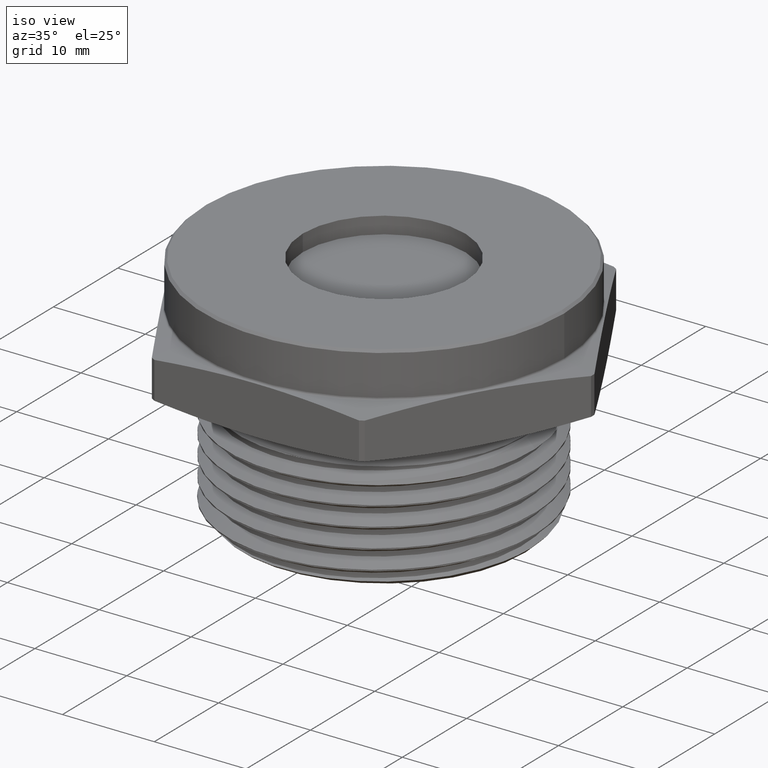
[diagram: clean part render]
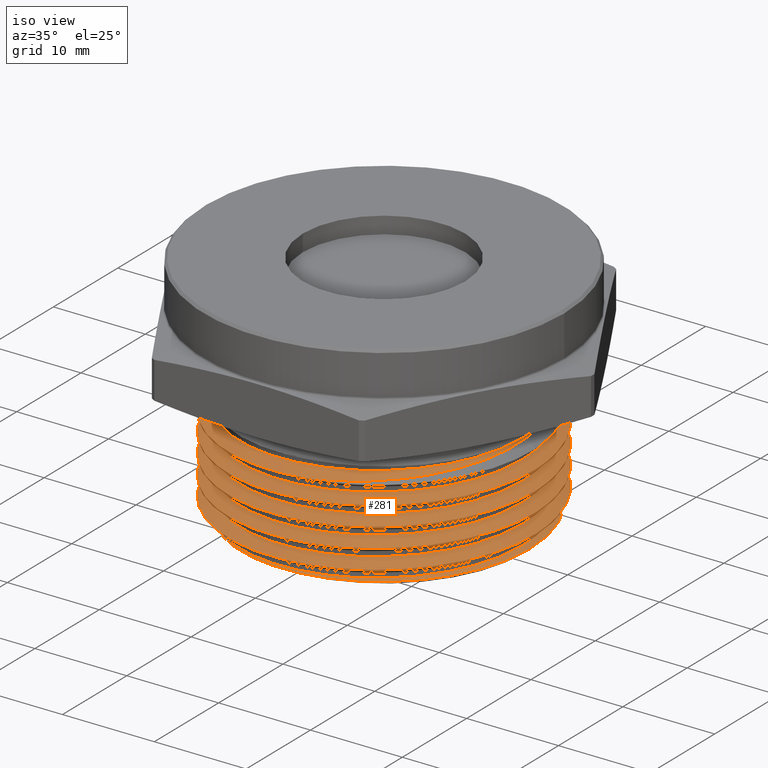
[diagram: same view with one face highlighted and labeled with its STEP entity id]
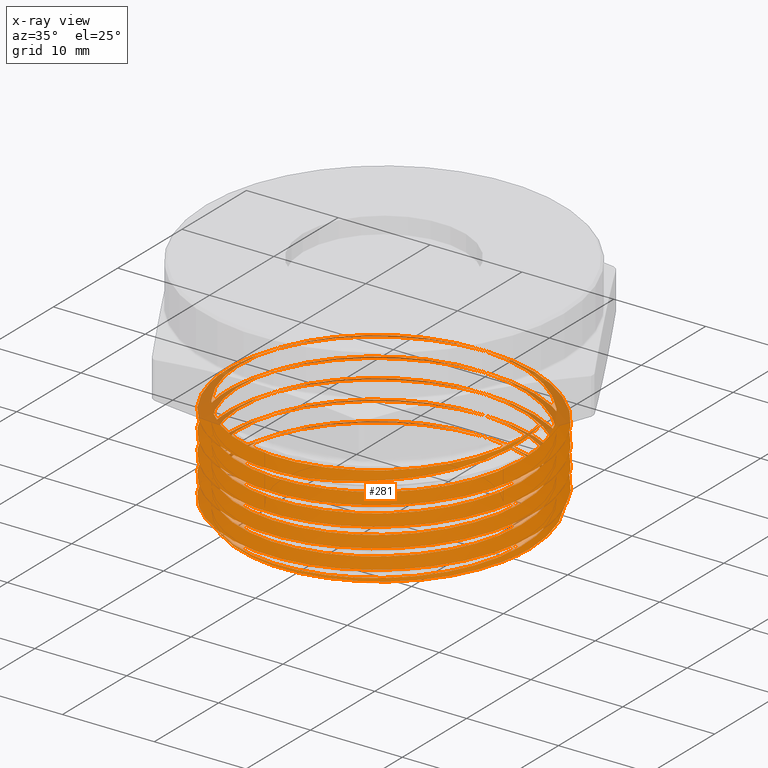
[diagram: x-ray of the same camera — body ghosted, the highlighted face saturated]
A machine part, iso view. The second image highlights one B-rep face of the part: STEP entity #281.
The next image is the same camera in x-ray: the body ghosted, the highlighted face saturated — about 10% of this face is hidden behind the body in this view.
In plain terms, the highlighted face is a freeform B-spline surface patch.
Its self-contained STEP definition (entity closure, byte-faithful):
#1 =( BOUNDED_CURVE ( )  B_SPLINE_CURVE ( 2, ( #2948, #2956, #2960, #2961, #2962, #2963, #2964 ),
 .UNSPECIFIED., .F., .F. ) 
 B_SPLINE_CURVE_WITH_KNOTS ( ( 3, 2, 2, 3 ),
 ( 0.1029046092681590900, 0.1142857142857143200, 0.1285714285714285600, 0.1428571429927287800 ),
 .UNSPECIFIED. ) 
 CURVE ( )  GEOMETRIC_REPRESENTATION_ITEM ( )  RATIONAL_B_SPLINE_CURVE ( ( 0.9841440194788815300, 0.9610078350421098500, 1.000000000000000000, 0.9510565162951535300, 1.000000000000000000, 0.9510565162951535300, 1.000000000000000000 ) ) 
 REPRESENTATION_ITEM ( '' )  );
#8 = B_SPLINE_CURVE_WITH_KNOTS ( 'NONE', 3,
 ( #327, #328, #332, #333, #334, #335, #336, #337, #338, #339, #340, #341, #342, #343, #344, #345, #346, #347, #348, #349, #350, #351 ),
 .UNSPECIFIED., .F., .F.,
 ( 4, 2, 2, 2, 2, 2, 2, 2, 2, 2, 4 ),
 ( 2.739048992008052900E-015, 0.002807216953723787400, 0.004210825430584311800, 0.005614433907444835700, 0.008421650861165884400, 0.009825259338026406600, 0.01122886781488692900, 0.01403608476860797700, 0.01684330172232902100, 0.01965051867605007200, 0.02245773562977112000 ),
 .UNSPECIFIED. ) ;
#12 =( BOUNDED_CURVE ( )  B_SPLINE_CURVE ( 2, ( #394, #395, #515, #516, #517, #518, #519, #520, #521, #522, #523, #524, #525, #526, #527, #528, #529, #530, #531, #532, #533, #534, #535, #536, #537, #538, #539, #540, #541, #542, #543, #544, #545, #546, #547, #548, #549, #550, #551, #552, #553, #554, #555, #556, #557, #558, #559, #560, #561, #562, #563, #564, #565, #566, #567, #568, #569, #570, #571, #572, #573, #574, #575, #576, #577, #578, #579, #580, #581, #582, #583, #584, #585, #586, #587, #588, #589, #590, #591, #592, #593, #594, #595, #596, #597, #598, #599, #600, #601, #602, #603, #604, #605, #606, #607, #608, #609, #610, #611, #612, #613, #614, #615, #616, #617, #618, #619, #620, #621, #622, #623, #624, #625 ),
 .UNSPECIFIED., .F., .F. ) 
 B_SPLINE_CURVE_WITH_KNOTS ( ( 3, 2, 2, 2, 2, 2, 2, 2, 2, 2, 2, 2, 2, 2, 2, 2, 2, 2, 2, 2, 2, 2, 2, 2, 2, 2, 2, 2, 2, 2, 2, 2, 2, 2, 2, 2, 2, 2, 2, 2, 2, 2, 2, 2, 2, 2, 2, 2, 2, 2, 2, 2, 2, 2, 2, 2, 3 ),
 ( 0.1561963735778175700, 0.1571428571428571400, 0.1714285714285714300, 0.1857142857142857200, 0.2000000000000000100, 0.2142857142857142700, 0.2285714285714285600, 0.2428571428571428500, 0.2571428571428571200, 0.2714285714285714100, 0.2857142857142857000, 0.2999999999999999900, 0.3142857142857142800, 0.3285714285714285700, 0.3428571428571428600, 0.3571428571428571500, 0.3714285714285714400, 0.3857142857142857300, 0.4000000000000000200, 0.4142857142857143100, 0.4285714285714285500, 0.4428571428571428400, 0.4571428571428571300, 0.4714285714285714200, 0.4857142857142857700, 0.5000000000000000000, 0.5142857142857142300, 0.5285714285714285800, 0.5428571428571428200, 0.5571428571428571600, 0.5714285714285714000, 0.5857142857142857400, 0.5999999999999998700, 0.6142857142857143200, 0.6285714285714285600, 0.6428571428571429000, 0.6571428571428571400, 0.6714285714285713700, 0.6857142857142857200, 0.6999999999999999600, 0.7142857142857143000, 0.7285714285714285400, 0.7428571428571428800, 0.7571428571428571200, 0.7714285714285714600, 0.7857142857142857000, 0.8000000000000000400, 0.8142857142857141700, 0.8285714285714285100, 0.8428571428571428600, 0.8571428571428571000, 0.8714285714285714400, 0.8857142857142856800, 0.9000000000000000200, 0.9142857142857142600, 0.9285714285714286000, 0.9331567310335348000 ),
 .UNSPECIFIED. ) 
 CURVE ( )  GEOMETRIC_REPRESENTATION_ITEM ( )  RATIONAL_B_SPLINE_CURVE ( ( 0.9939442935361970700, 0.9967573057940306600, 1.000000000000000000, 0.9510565162951535300, 1.000000000000000000, 0.9510565162951535300, 1.000000000000000000, 0.9510565162951535300, 1.000000000000000000, 0.9510565162951535300, 1.000000000000000000, 0.9510565162951535300, 1.000000000000000000, 0.9510565162951535300, 1.000000000000000000, 0.9510565162951535300, 1.000000000000000000, 0.9510565162951535300, 1.000000000000000000, 0.9510565162951535300, 1.000000000000000000, 0.9510565162951535300, 1.000000000000000000, 0.9510565162951535300, 1.000000000000000000, 0.9510565162951535300, 1.000000000000000000, 0.9510565162951535300, 1.000000000000000000, 0.9510565162951535300, 1.000000000000000000, 0.9510565162951535300, 1.000000000000000000, 0.9510565162951535300, 1.000000000000000000, 0.9510565162951535300, 1.000000000000000000, 0.9510565162951535300, 1.000000000000000000, 0.9510565162951535300, 1.000000000000000000, 0.9510565162951535300, 1.000000000000000000, 0.9510565162951535300, 1.000000000000000000, 0.9510565162951535300, 1.000000000000000000, 0.9510565162951535300, 1.000000000000000000, 0.9510565162951535300, 1.000000000000000000, 0.9510565162951535300, 1.000000000000000000, 0.9510565162951535300, 1.000000000000000000, 0.9510565162951535300, 1.000000000000000000, 0.9510565162951535300, 1.000000000000000000, 0.9510565162951535300, 1.000000000000000000, 0.9510565162951535300, 1.000000000000000000, 0.9510565162951535300, 1.000000000000000000, 0.9510565162951535300, 1.000000000000000000, 0.9510565162951535300, 1.000000000000000000, 0.9510565162951535300, 1.000000000000000000, 0.9510565162951535300, 1.000000000000000000, 0.9510565162951535300, 1.000000000000000000, 0.9510565162951535300, 1.000000000000000000, 0.9510565162951535300, 1.000000000000000000, 0.9510565162951535300, 1.000000000000000000, 0.9510565162951535300, 1.000000000000000000, 0.9510565162951535300, 1.000000000000000000, 0.9510565162951535300, 1.000000000000000000, 0.9510565162951535300, 1.000000000000000000, 0.9510565162951535300, 1.000000000000000000, 0.9510565162951535300, 1.000000000000000000, 0.9510565162951535300, 1.000000000000000000, 0.9510565162951535300, 1.000000000000000000, 0.9510565162951535300, 1.000000000000000000, 0.9510565162951535300, 1.000000000000000000, 0.9510565162951535300, 1.000000000000000000, 0.9510565162951535300, 1.000000000000000000, 0.9510565162951535300, 1.000000000000000000, 0.9510565162951535300, 1.000000000000000000, 0.9510565162951535300, 1.000000000000000000, 0.9842905526564882400, 0.9786656647745308700 ) ) 
 REPRESENTATION_ITEM ( '' )  );
#13 = B_SPLINE_CURVE_WITH_KNOTS ( 'NONE', 3,
 ( #404, #514, #628, #629 ),
 .UNSPECIFIED., .F., .F.,
 ( 4, 4 ),
 ( 0.09167734799987106700, 0.09512153029998821100 ),
 .UNSPECIFIED. ) ;
#15 = B_SPLINE_CURVE_WITH_KNOTS ( 'NONE', 3,
 ( #656, #663, #668, #669 ),
 .UNSPECIFIED., .F., .F.,
 ( 4, 4 ),
 ( 0.02245773562977112000, 0.02560065844482746500 ),
 .UNSPECIFIED. ) ;
#126 = CARTESIAN_POINT ( 'NONE',  ( 0.3749303223021366300, -0.5160473106875115300, -0.3086365732740082900 ) ) ;
#154 = VERTEX_POINT ( 'NONE', #3346 ) ;
#157 = VERTEX_POINT ( 'NONE', #3342 ) ;
#170 = EDGE_LOOP ( 'NONE', ( #3061, #3062, #3064, #3063, #3052, #3051, #2522, #2523, #3041, #3042, #3043, #3044, #3045, #3046, #3047 ) ) ;
#281 = ADVANCED_FACE ( 'NONE', ( #2143 ), #1782, .F. ) ;
#327 = CARTESIAN_POINT ( 'NONE',  ( 0.1222664843980831200, -0.6447596213263772100, -0.1764276695296655200 ) ) ;
#328 = CARTESIAN_POINT ( 'NONE',  ( 0.1581992145348908900, -0.6361514628969402500, -0.1746648895210923500 ) ) ;
#332 = CARTESIAN_POINT ( 'NONE',  ( 0.1931564195535559200, -0.6246456571308373100, -0.1729657213524344600 ) ) ;
#333 = CARTESIAN_POINT ( 'NONE',  ( 0.2440762587790142600, -0.6029076414949509100, -0.1703553410752305900 ) ) ;
#334 = CARTESIAN_POINT ( 'NONE',  ( 0.2607091818091996600, -0.5949379663592609900, -0.1694744947867313200 ) ) ;
#335 = CARTESIAN_POINT ( 'NONE',  ( 0.2930111996694653200, -0.5777310295479732800, -0.1677072917307581300 ) ) ;
#336 = CARTESIAN_POINT ( 'NONE',  ( 0.3087276821177731300, -0.5684738976170257100, -0.1668185180654590000 ) ) ;
#337 = CARTESIAN_POINT ( 'NONE',  ( 0.3545914884679146600, -0.5387685434677320600, -0.1641363632311977600 ) ) ;
#338 = CARTESIAN_POINT ( 'NONE',  ( 0.3834628412394601700, -0.5164009157170408300, -0.1623271921206877700 ) ) ;
#339 = CARTESIAN_POINT ( 'NONE',  ( 0.4241141317280917600, -0.4788545922374976600, -0.1595798164514374000 ) ) ;
#340 = CARTESIAN_POINT ( 'NONE',  ( 0.4370979352455592300, -0.4657756918594521700, -0.1586664197428095100 ) ) ;
#341 = CARTESIAN_POINT ( 'NONE',  ( 0.4617404917929237000, -0.4387410514965215900, -0.1568599105691848800 ) ) ;
#342 = CARTESIAN_POINT ( 'NONE',  ( 0.4734361370654457900, -0.4247514384045506000, -0.1559643113860481900 ) ) ;
#343 = CARTESIAN_POINT ( 'NONE',  ( 0.5066701896221426100, -0.3813838229874260100, -0.1533006245041087000 ) ) ;
#344 = CARTESIAN_POINT ( 'NONE',  ( 0.5263848740072645200, -0.3506279502939262400, -0.1515732752524473500 ) ) ;
#345 = CARTESIAN_POINT ( 'NONE',  ( 0.5604796278427534000, -0.2851052615446335600, -0.1479211196765071200 ) ) ;
#346 = CARTESIAN_POINT ( 'NONE',  ( 0.5744118521917001000, -0.2512383339318328700, -0.1460748183491663000 ) ) ;
#347 = CARTESIAN_POINT ( 'NONE',  ( 0.5961585236670671200, -0.1817356229369374900, -0.1423596256409075100 ) ) ;
#348 = CARTESIAN_POINT ( 'NONE',  ( 0.6040066952567534300, -0.1460130364083356000, -0.1404860204842911800 ) ) ;
#349 = CARTESIAN_POINT ( 'NONE',  ( 0.6133447721706510900, -0.07271363222707151500, -0.1367144789811388400 ) ) ;
#350 = CARTESIAN_POINT ( 'NONE',  ( 0.6146967487516158400, -0.03626260655669699700, -0.1348744182813128900 ) ) ;
#351 = CARTESIAN_POINT ( 'NONE',  ( 0.6129016002266093300, -5.631799335591106200E-013, -0.1330792697562727700 ) ) ;
#394 = CARTESIAN_POINT ( 'NONE',  ( -0.5050184525457394000, -0.3361258470994258900, -0.5800000000000000700 ) ) ;
#395 = CARTESIAN_POINT ( 'NONE',  ( -0.4981143701863132700, -0.3464990124465539600, -0.5797333072155793600 ) ) ;
#404 = CARTESIAN_POINT ( 'NONE',  ( -0.6545341604130328100, 1.167281247895687800E-012, -0.5321158395869685100 ) ) ;
#514 = CARTESIAN_POINT ( 'NONE',  ( -0.6550905918945595400, -0.04479808344849368200, -0.5315594081055217100 ) ) ;
#515 = CARTESIAN_POINT ( 'NONE',  ( -0.4907901575459474600, -0.3565799261820891700, -0.5794699066073415400 ) ) ;
#516 = CARTESIAN_POINT ( 'NONE',  ( -0.3749303162481109100, -0.5160473150860186400, -0.5753032399406748900 ) ) ;
#517 = CARTESIAN_POINT ( 'NONE',  ( -0.1874651562532586000, -0.5769584367100817300, -0.5711365732740081300 ) ) ;
#518 = CARTESIAN_POINT ( 'NONE',  ( 3.741593667411984000E-009, -0.6378695583341449400, -0.5669699066073414800 ) ) ;
#519 = CARTESIAN_POINT ( 'NONE',  ( 0.1874651630218651400, -0.5769584345108281800, -0.5628032399406748300 ) ) ;
#520 = CARTESIAN_POINT ( 'NONE',  ( 0.3749303223021366300, -0.5160473106875115300, -0.5586365732740082900 ) ) ;
#521 = CARTESIAN_POINT ( 'NONE',  ( 0.4907901617291763900, -0.3565799204243685300, -0.5544699066073415200 ) ) ;
#522 = CARTESIAN_POINT ( 'NONE',  ( 0.6066500011562160300, -0.1971125301612256200, -0.5503032399406747600 ) ) ;
#523 = CARTESIAN_POINT ( 'NONE',  ( 0.6066500000000000200, 3.558467001574251200E-009, -0.5461365732740082200 ) ) ;
#524 = CARTESIAN_POINT ( 'NONE',  ( 0.6066499988437841200, 0.1971125372781596100, -0.5419699066073414600 ) ) ;
#525 = CARTESIAN_POINT ( 'NONE',  ( 0.4907901575459474600, 0.3565799261820891100, -0.5378032399406749200 ) ) ;
#526 = CARTESIAN_POINT ( 'NONE',  ( 0.3749303162481109600, 0.5160473150860185300, -0.5336365732740080400 ) ) ;
#527 = CARTESIAN_POINT ( 'NONE',  ( 0.1874651562532586600, 0.5769584367100817300, -0.5294699066073416100 ) ) ;
#528 = CARTESIAN_POINT ( 'NONE',  ( -3.741593589295493800E-009, 0.6378695583341449400, -0.5253032399406748500 ) ) ;
#529 = CARTESIAN_POINT ( 'NONE',  ( -0.1874651630218650800, 0.5769584345108281800, -0.5211365732740082000 ) ) ;
#530 = CARTESIAN_POINT ( 'NONE',  ( -0.3749303223021365200, 0.5160473106875115300, -0.5169699066073415400 ) ) ;
#531 = CARTESIAN_POINT ( 'NONE',  ( -0.4907901617291763900, 0.3565799204243686500, -0.5128032399406748900 ) ) ;
#532 = CARTESIAN_POINT ( 'NONE',  ( -0.6066500011562160300, 0.1971125301612257400, -0.5086365732740082400 ) ) ;
#533 = CARTESIAN_POINT ( 'NONE',  ( -0.6066500000000000200, -3.558467075867449300E-009, -0.5044699066073415900 ) ) ;
#534 = CARTESIAN_POINT ( 'NONE',  ( -0.6066499988437841200, -0.1971125372781596700, -0.5003032399406748300 ) ) ;
#535 = CARTESIAN_POINT ( 'NONE',  ( -0.4907901575459474600, -0.3565799261820891700, -0.4961365732740082300 ) ) ;
#536 = CARTESIAN_POINT ( 'NONE',  ( -0.3749303162481109100, -0.5160473150860186400, -0.4919699066073415200 ) ) ;
#537 = CARTESIAN_POINT ( 'NONE',  ( -0.1874651562532586000, -0.5769584367100817300, -0.4878032399406748700 ) ) ;
#538 = CARTESIAN_POINT ( 'NONE',  ( 3.741593667411984000E-009, -0.6378695583341449400, -0.4836365732740082200 ) ) ;
#539 = CARTESIAN_POINT ( 'NONE',  ( 0.1874651630218651400, -0.5769584345108281800, -0.4794699066073415700 ) ) ;
#540 = CARTESIAN_POINT ( 'NONE',  ( 0.3749303223021366300, -0.5160473106875115300, -0.4753032399406749200 ) ) ;
#541 = CARTESIAN_POINT ( 'NONE',  ( 0.4907901617291763900, -0.3565799204243685300, -0.4711365732740082100 ) ) ;
#542 = CARTESIAN_POINT ( 'NONE',  ( 0.6066500011562160300, -0.1971125301612256200, -0.4669699066073414500 ) ) ;
#543 = CARTESIAN_POINT ( 'NONE',  ( 0.6066500000000000200, 3.558467001574251200E-009, -0.4628032399406748500 ) ) ;
#544 = CARTESIAN_POINT ( 'NONE',  ( 0.6066499988437841200, 0.1971125372781596100, -0.4586365732740081400 ) ) ;
#545 = CARTESIAN_POINT ( 'NONE',  ( 0.4907901575459474600, 0.3565799261820891100, -0.4544699066073415400 ) ) ;
#546 = CARTESIAN_POINT ( 'NONE',  ( 0.3749303162481109600, 0.5160473150860185300, -0.4503032399406748400 ) ) ;
#547 = CARTESIAN_POINT ( 'NONE',  ( 0.1874651562532586600, 0.5769584367100817300, -0.4461365732740081900 ) ) ;
#548 = CARTESIAN_POINT ( 'NONE',  ( -3.741593589295493800E-009, 0.6378695583341449400, -0.4419699066073414800 ) ) ;
#549 = CARTESIAN_POINT ( 'NONE',  ( -0.1874651630218650800, 0.5769584345108281800, -0.4378032399406748300 ) ) ;
#550 = CARTESIAN_POINT ( 'NONE',  ( -0.3749303223021365200, 0.5160473106875115300, -0.4336365732740080600 ) ) ;
#551 = CARTESIAN_POINT ( 'NONE',  ( -0.4907901617291763900, 0.3565799204243686500, -0.4294699066073415800 ) ) ;
#552 = CARTESIAN_POINT ( 'NONE',  ( -0.6066500011562160300, 0.1971125301612257400, -0.4253032399406749800 ) ) ;
#553 = CARTESIAN_POINT ( 'NONE',  ( -0.6066500000000000200, -3.558467075867449300E-009, -0.4211365732740082200 ) ) ;
#554 = CARTESIAN_POINT ( 'NONE',  ( -0.6066499988437841200, -0.1971125372781596700, -0.4169699066073415700 ) ) ;
#555 = CARTESIAN_POINT ( 'NONE',  ( -0.4907901575459474600, -0.3565799261820891700, -0.4128032399406748600 ) ) ;
#556 = CARTESIAN_POINT ( 'NONE',  ( -0.3749303162481109100, -0.5160473150860186400, -0.4086365732740082100 ) ) ;
#557 = CARTESIAN_POINT ( 'NONE',  ( -0.1874651562532586000, -0.5769584367100817300, -0.4044699066073415600 ) ) ;
#558 = CARTESIAN_POINT ( 'NONE',  ( 3.741593667411984000E-009, -0.6378695583341449400, -0.4003032399406748500 ) ) ;
#559 = CARTESIAN_POINT ( 'NONE',  ( 0.1874651630218651400, -0.5769584345108281800, -0.3961365732740082500 ) ) ;
#560 = CARTESIAN_POINT ( 'NONE',  ( 0.3749303223021366300, -0.5160473106875115300, -0.3919699066073415400 ) ) ;
#561 = CARTESIAN_POINT ( 'NONE',  ( 0.4907901617291763900, -0.3565799204243685300, -0.3878032399406748900 ) ) ;
#562 = CARTESIAN_POINT ( 'NONE',  ( 0.6066500011562160300, -0.1971125301612256200, -0.3836365732740081900 ) ) ;
#563 = CARTESIAN_POINT ( 'NONE',  ( 0.6066500000000000200, 3.558467001574251200E-009, -0.3794699066073415300 ) ) ;
#564 = CARTESIAN_POINT ( 'NONE',  ( 0.6066499988437841200, 0.1971125372781596100, -0.3753032399406748300 ) ) ;
#565 = CARTESIAN_POINT ( 'NONE',  ( 0.4907901575459474600, 0.3565799261820891100, -0.3711365732740082300 ) ) ;
#566 = CARTESIAN_POINT ( 'NONE',  ( 0.3749303162481109600, 0.5160473150860185300, -0.3669699066073414700 ) ) ;
#567 = CARTESIAN_POINT ( 'NONE',  ( 0.1874651562532586600, 0.5769584367100817300, -0.3628032399406748700 ) ) ;
#568 = CARTESIAN_POINT ( 'NONE',  ( -3.741593589295493800E-009, 0.6378695583341449400, -0.3586365732740081600 ) ) ;
#569 = CARTESIAN_POINT ( 'NONE',  ( -0.1874651630218650800, 0.5769584345108281800, -0.3544699066073415700 ) ) ;
#570 = CARTESIAN_POINT ( 'NONE',  ( -0.3749303223021365200, 0.5160473106875115300, -0.3503032399406747500 ) ) ;
#571 = CARTESIAN_POINT ( 'NONE',  ( -0.4907901617291763900, 0.3565799204243686500, -0.3461365732740082600 ) ) ;
#572 = CARTESIAN_POINT ( 'NONE',  ( -0.6066500011562160300, 0.1971125301612257400, -0.3419699066073415600 ) ) ;
#573 = CARTESIAN_POINT ( 'NONE',  ( -0.6066500000000000200, -3.558467075867449300E-009, -0.3378032399406749000 ) ) ;
#574 = CARTESIAN_POINT ( 'NONE',  ( -0.6066499988437841200, -0.1971125372781596700, -0.3336365732740082500 ) ) ;
#575 = CARTESIAN_POINT ( 'NONE',  ( -0.4907901575459474600, -0.3565799261820891700, -0.3294699066073415400 ) ) ;
#576 = CARTESIAN_POINT ( 'NONE',  ( -0.3749303162481109100, -0.5160473150860186400, -0.3253032399406748900 ) ) ;
#577 = CARTESIAN_POINT ( 'NONE',  ( -0.1874651562532586000, -0.5769584367100817300, -0.3211365732740082400 ) ) ;
#578 = CARTESIAN_POINT ( 'NONE',  ( 3.741593667411984000E-009, -0.6378695583341449400, -0.3169699066073415300 ) ) ;
#579 = CARTESIAN_POINT ( 'NONE',  ( 0.1874651630218651400, -0.5769584345108281800, -0.3128032399406748800 ) ) ;
#580 = CARTESIAN_POINT ( 'NONE',  ( 0.3749303223021366300, -0.5160473106875115300, -0.3086365732740082300 ) ) ;
#581 = CARTESIAN_POINT ( 'NONE',  ( 0.4907901617291763900, -0.3565799204243685300, -0.3044699066073415200 ) ) ;
#582 = CARTESIAN_POINT ( 'NONE',  ( 0.6066500011562160300, -0.1971125301612256200, -0.3003032399406748700 ) ) ;
#583 = CARTESIAN_POINT ( 'NONE',  ( 0.6066500000000000200, 3.558467001574251200E-009, -0.2961365732740082200 ) ) ;
#584 = CARTESIAN_POINT ( 'NONE',  ( 0.6066499988437841200, 0.1971125372781596100, -0.2919699066073415700 ) ) ;
#585 = CARTESIAN_POINT ( 'NONE',  ( 0.4907901575459474600, 0.3565799261820891100, -0.2878032399406748600 ) ) ;
#586 = CARTESIAN_POINT ( 'NONE',  ( 0.3749303162481109600, 0.5160473150860185300, -0.2836365732740082100 ) ) ;
#587 = CARTESIAN_POINT ( 'NONE',  ( 0.1874651562532586600, 0.5769584367100817300, -0.2794699066073416100 ) ) ;
#588 = CARTESIAN_POINT ( 'NONE',  ( -3.741593589295493800E-009, 0.6378695583341449400, -0.2753032399406748500 ) ) ;
#589 = CARTESIAN_POINT ( 'NONE',  ( -0.1874651630218650800, 0.5769584345108281800, -0.2711365732740082500 ) ) ;
#590 = CARTESIAN_POINT ( 'NONE',  ( -0.3749303223021365200, 0.5160473106875115300, -0.2669699066073416000 ) ) ;
#591 = CARTESIAN_POINT ( 'NONE',  ( -0.4907901617291763900, 0.3565799204243686500, -0.2628032399406748900 ) ) ;
#592 = CARTESIAN_POINT ( 'NONE',  ( -0.6066500011562160300, 0.1971125301612257400, -0.2586365732740081900 ) ) ;
#593 = CARTESIAN_POINT ( 'NONE',  ( -0.6066500000000000200, -3.558467075867449300E-009, -0.2544699066073415900 ) ) ;
#594 = CARTESIAN_POINT ( 'NONE',  ( -0.6066499988437841200, -0.1971125372781596700, -0.2503032399406748300 ) ) ;
#595 = CARTESIAN_POINT ( 'NONE',  ( -0.4907901575459474600, -0.3565799261820891700, -0.2461365732740082300 ) ) ;
#596 = CARTESIAN_POINT ( 'NONE',  ( -0.3749303162481109100, -0.5160473150860186400, -0.2419699066073415800 ) ) ;
#597 = CARTESIAN_POINT ( 'NONE',  ( -0.1874651562532586000, -0.5769584367100817300, -0.2378032399406749300 ) ) ;
#598 = CARTESIAN_POINT ( 'NONE',  ( 3.741593667411984000E-009, -0.6378695583341449400, -0.2336365732740082200 ) ) ;
#599 = CARTESIAN_POINT ( 'NONE',  ( 0.1874651630218651400, -0.5769584345108281800, -0.2294699066073415700 ) ) ;
#600 = CARTESIAN_POINT ( 'NONE',  ( 0.3749303223021366300, -0.5160473106875115300, -0.2253032399406749400 ) ) ;
#601 = CARTESIAN_POINT ( 'NONE',  ( 0.4907901617291763900, -0.3565799204243685300, -0.2211365732740082100 ) ) ;
#602 = CARTESIAN_POINT ( 'NONE',  ( 0.6066500011562160300, -0.1971125301612256200, -0.2169699066073415300 ) ) ;
#603 = CARTESIAN_POINT ( 'NONE',  ( 0.6066500000000000200, 3.558467001574251200E-009, -0.2128032399406749300 ) ) ;
#604 = CARTESIAN_POINT ( 'NONE',  ( 0.6066499988437841200, 0.1971125372781596100, -0.2086365732740081700 ) ) ;
#605 = CARTESIAN_POINT ( 'NONE',  ( 0.4907901575459474600, 0.3565799261820891100, -0.2044699066073415700 ) ) ;
#606 = CARTESIAN_POINT ( 'NONE',  ( 0.3749303162481109600, 0.5160473150860185300, -0.2003032399406748700 ) ) ;
#607 = CARTESIAN_POINT ( 'NONE',  ( 0.1874651562532586600, 0.5769584367100817300, -0.1961365732740082100 ) ) ;
#608 = CARTESIAN_POINT ( 'NONE',  ( -3.741593589295493800E-009, 0.6378695583341449400, -0.1919699066073415600 ) ) ;
#609 = CARTESIAN_POINT ( 'NONE',  ( -0.1874651630218650800, 0.5769584345108281800, -0.1878032399406749100 ) ) ;
#610 = CARTESIAN_POINT ( 'NONE',  ( -0.3749303223021365200, 0.5160473106875115300, -0.1836365732740082000 ) ) ;
#611 = CARTESIAN_POINT ( 'NONE',  ( -0.4907901617291763900, 0.3565799204243686500, -0.1794699066073415500 ) ) ;
#612 = CARTESIAN_POINT ( 'NONE',  ( -0.6066500011562160300, 0.1971125301612257400, -0.1753032399406749300 ) ) ;
#613 = CARTESIAN_POINT ( 'NONE',  ( -0.6066500000000000200, -3.558467075867449300E-009, -0.1711365732740081900 ) ) ;
#614 = CARTESIAN_POINT ( 'NONE',  ( -0.6066499988437841200, -0.1971125372781596700, -0.1669699066073415100 ) ) ;
#615 = CARTESIAN_POINT ( 'NONE',  ( -0.4907901575459474600, -0.3565799261820891700, -0.1628032399406749200 ) ) ;
#616 = CARTESIAN_POINT ( 'NONE',  ( -0.3749303162481109100, -0.5160473150860186400, -0.1586365732740082600 ) ) ;
#617 = CARTESIAN_POINT ( 'NONE',  ( -0.1874651562532586000, -0.5769584367100817300, -0.1544699066073415600 ) ) ;
#618 = CARTESIAN_POINT ( 'NONE',  ( 3.741593667411984000E-009, -0.6378695583341449400, -0.1503032399406749000 ) ) ;
#619 = CARTESIAN_POINT ( 'NONE',  ( 0.1874651630218651400, -0.5769584345108281800, -0.1461365732740082500 ) ) ;
#620 = CARTESIAN_POINT ( 'NONE',  ( 0.3749303223021366300, -0.5160473106875115300, -0.1419699066073415400 ) ) ;
#621 = CARTESIAN_POINT ( 'NONE',  ( 0.4907901617291763900, -0.3565799204243685300, -0.1378032399406749200 ) ) ;
#622 = CARTESIAN_POINT ( 'NONE',  ( 0.6066500011562160300, -0.1971125301612256200, -0.1336365732740082400 ) ) ;
#623 = CARTESIAN_POINT ( 'NONE',  ( 0.6066500000000000200, 3.558467001574251200E-009, -0.1294699066073415600 ) ) ;
#624 = CARTESIAN_POINT ( 'NONE',  ( 0.6066499996414185200, 0.06113125377799964000, -0.1281776826286086500 ) ) ;
#625 = CARTESIAN_POINT ( 'NONE',  ( 0.5944536281719904300, 0.1210334931048311200, -0.1268276695296611800 ) ) ;
#628 = CARTESIAN_POINT ( 'NONE',  ( -0.6511124122729430300, -0.08946991267125446700, -0.5309875993019439500 ) ) ;
#629 = CARTESIAN_POINT ( 'NONE',  ( -0.6424213889398752200, -0.1340105276930183300, -0.5304000000000010900 ) ) ;
#656 = CARTESIAN_POINT ( 'NONE',  ( 0.6129016002266093300, -5.631799335591106200E-013, -0.1330792697562727700 ) ) ;
#663 = CARTESIAN_POINT ( 'NONE',  ( 0.6108917757817330400, 0.04059913264845195500, -0.1310694453113593900 ) ) ;
#668 = CARTESIAN_POINT ( 'NONE',  ( 0.6048198897454479800, 0.08094845224201294200, -0.1289881068263756300 ) ) ;
#669 = CARTESIAN_POINT ( 'NONE',  ( 0.5944536281719904300, 0.1210334931048311200, -0.1268276695296611800 ) ) ;
#801 = CARTESIAN_POINT ( 'NONE',  ( 0.6562500000000002200, -9.745115333224086500E-016, -0.2414398133677006800 ) ) ;
#812 = CARTESIAN_POINT ( 'NONE',  ( 0.6129016002266093300, -5.631799335591106200E-013, -0.1330792697562727700 ) ) ;
#814 = CARTESIAN_POINT ( 'NONE',  ( 0.6281185522373986500, -1.569604940580869600E-016, -0.5585314477626022200 ) ) ;
#845 = CARTESIAN_POINT ( 'NONE',  ( 0.6562500000000002200, -9.745115035548978000E-016, -0.3247731467010340200 ) ) ;
#847 = CARTESIAN_POINT ( 'NONE',  ( 0.5944536281719904300, 0.1210334931048311200, -0.1268276695296611800 ) ) ;
#850 = CARTESIAN_POINT ( 'NONE',  ( 0.6562500000000002200, 6.015020447788432800E-016, -0.4914398133677006000 ) ) ;
#851 = CARTESIAN_POINT ( 'NONE',  ( -0.6424213889398752200, -0.1340105276930183300, -0.5304000000000010900 ) ) ;
#854 = CARTESIAN_POINT ( 'NONE',  ( -0.6562500000000002200, -6.818694718618985700E-016, -0.4497731467010338500 ) ) ;
#858 = CARTESIAN_POINT ( 'NONE',  ( -0.6562500000000002200, 8.941440914828094400E-016, -0.3664398133677007600 ) ) ;
#859 = CARTESIAN_POINT ( 'NONE',  ( -0.6562500000000002200, 8.941440914828094400E-016, -0.1997731467010339700 ) ) ;
#863 = CARTESIAN_POINT ( 'NONE',  ( 0.6562500000000002200, 6.015020447788432800E-016, -0.4081064800343672800 ) ) ;
#864 = CARTESIAN_POINT ( 'NONE',  ( -0.6562500000000002200, 8.941440619697218100E-016, -0.2831064800343673900 ) ) ;
#867 = CARTESIAN_POINT ( 'NONE',  ( -0.6545341604130328100, 1.167281247895687800E-012, -0.5321158395869685100 ) ) ;
#895 = CARTESIAN_POINT ( 'NONE',  ( 0.4907901617291763900, -0.3565799204243685300, -0.3044699066073415200 ) ) ;
#896 = CARTESIAN_POINT ( 'NONE',  ( 0.6066500011562160300, -0.1971125301612256200, -0.3003032399406748200 ) ) ;
#897 = CARTESIAN_POINT ( 'NONE',  ( 0.6066500000000000200, 3.558467001574251200E-009, -0.2961365732740082200 ) ) ;
#898 = CARTESIAN_POINT ( 'NONE',  ( 0.6066499988437840100, 0.1971125372781596100, -0.2919699066073415700 ) ) ;
#899 = CARTESIAN_POINT ( 'NONE',  ( 0.4907901575459474600, 0.3565799261820891100, -0.2878032399406748600 ) ) ;
#900 = CARTESIAN_POINT ( 'NONE',  ( 0.3749303162481110200, 0.5160473150860185300, -0.2836365732740082600 ) ) ;
#901 = CARTESIAN_POINT ( 'NONE',  ( 0.1874651562532586600, 0.5769584367100817300, -0.2794699066073416100 ) ) ;
#902 = CARTESIAN_POINT ( 'NONE',  ( -3.741593589295493800E-009, 0.6378695583341448300, -0.2753032399406748500 ) ) ;
#903 = CARTESIAN_POINT ( 'NONE',  ( -0.1874651630218650800, 0.5769584345108281800, -0.2711365732740082500 ) ) ;
#904 = CARTESIAN_POINT ( 'NONE',  ( -0.3749303223021365200, 0.5160473106875115300, -0.2669699066073416000 ) ) ;
#905 = CARTESIAN_POINT ( 'NONE',  ( -0.4907901617291763900, 0.3565799204243686500, -0.2628032399406748900 ) ) ;
#906 = CARTESIAN_POINT ( 'NONE',  ( -0.6066500011562160300, 0.1971125301612257600, -0.2586365732740081900 ) ) ;
#907 = CARTESIAN_POINT ( 'NONE',  ( -0.6066500000000000200, -3.558467075867449300E-009, -0.2544699066073415900 ) ) ;
#908 = CARTESIAN_POINT ( 'NONE',  ( -0.6066499988437840100, -0.1971125372781596700, -0.2503032399406748300 ) ) ;
#909 = CARTESIAN_POINT ( 'NONE',  ( -0.4907901575459474600, -0.3565799261820891700, -0.2461365732740082300 ) ) ;
#910 = CARTESIAN_POINT ( 'NONE',  ( -0.3749303162481109100, -0.5160473150860186400, -0.2419699066073415800 ) ) ;
#911 = CARTESIAN_POINT ( 'NONE',  ( -0.1874651562532586000, -0.5769584367100817300, -0.2378032399406749300 ) ) ;
#912 = CARTESIAN_POINT ( 'NONE',  ( 3.741593667411984000E-009, -0.6378695583341448300, -0.2336365732740082200 ) ) ;
#913 = CARTESIAN_POINT ( 'NONE',  ( 0.1874651630218651400, -0.5769584345108281800, -0.2294699066073415700 ) ) ;
#914 = CARTESIAN_POINT ( 'NONE',  ( 0.3749303223021366300, -0.5160473106875115300, -0.2253032399406749200 ) ) ;
#915 = CARTESIAN_POINT ( 'NONE',  ( 0.4907901617291763900, -0.3565799204243685300, -0.2211365732740082100 ) ) ;
#916 = CARTESIAN_POINT ( 'NONE',  ( 0.6066500011562160300, -0.1971125301612256200, -0.2169699066073415600 ) ) ;
#917 = CARTESIAN_POINT ( 'NONE',  ( 0.6066500000000000200, 3.558467001574251200E-009, -0.2128032399406749300 ) ) ;
#918 = CARTESIAN_POINT ( 'NONE',  ( 0.6066499988437840100, 0.1971125372781596100, -0.2086365732740081700 ) ) ;
#919 = CARTESIAN_POINT ( 'NONE',  ( 0.4907901575459474600, 0.3565799261820891100, -0.2044699066073415700 ) ) ;
#920 = CARTESIAN_POINT ( 'NONE',  ( 0.3749303162481110200, 0.5160473150860185300, -0.2003032399406748700 ) ) ;
#921 = CARTESIAN_POINT ( 'NONE',  ( 0.1874651562532586600, 0.5769584367100817300, -0.1961365732740082100 ) ) ;
#922 = CARTESIAN_POINT ( 'NONE',  ( -3.741593589295493800E-009, 0.6378695583341448300, -0.1919699066073415900 ) ) ;
#923 = CARTESIAN_POINT ( 'NONE',  ( -0.1874651630218650800, 0.5769584345108281800, -0.1878032399406749100 ) ) ;
#924 = CARTESIAN_POINT ( 'NONE',  ( -0.3749303223021365200, 0.5160473106875115300, -0.1836365732740082000 ) ) ;
#925 = CARTESIAN_POINT ( 'NONE',  ( -0.4907901617291763900, 0.3565799204243686500, -0.1794699066073415500 ) ) ;
#926 = CARTESIAN_POINT ( 'NONE',  ( -0.6066500011562160300, 0.1971125301612257600, -0.1753032399406749000 ) ) ;
#927 = CARTESIAN_POINT ( 'NONE',  ( -0.6066500000000000200, -3.558467075867449300E-009, -0.1711365732740081900 ) ) ;
#928 = CARTESIAN_POINT ( 'NONE',  ( -0.6066499988437840100, -0.1971125372781596700, -0.1669699066073415100 ) ) ;
#929 = CARTESIAN_POINT ( 'NONE',  ( -0.4907901575459474600, -0.3565799261820891700, -0.1628032399406749200 ) ) ;
#930 = CARTESIAN_POINT ( 'NONE',  ( -0.3749303162481109100, -0.5160473150860186400, -0.1586365732740082600 ) ) ;
#931 = CARTESIAN_POINT ( 'NONE',  ( -0.1874651562532586000, -0.5769584367100817300, -0.1544699066073415600 ) ) ;
#932 = CARTESIAN_POINT ( 'NONE',  ( 3.741593667411984000E-009, -0.6378695583341448300, -0.1503032399406748800 ) ) ;
#933 = CARTESIAN_POINT ( 'NONE',  ( 0.1874651630218651400, -0.5769584345108281800, -0.1461365732740082500 ) ) ;
#934 = CARTESIAN_POINT ( 'NONE',  ( 0.3749303223021366300, -0.5160473106875115300, -0.1419699066073415400 ) ) ;
#935 = CARTESIAN_POINT ( 'NONE',  ( 0.4907901617291763900, -0.3565799204243685300, -0.1378032399406749200 ) ) ;
#936 = CARTESIAN_POINT ( 'NONE',  ( 0.6066500011562160300, -0.1971125301612256200, -0.1336365732740082400 ) ) ;
#937 = CARTESIAN_POINT ( 'NONE',  ( 0.6066500000000000200, 3.558467001574251200E-009, -0.1294699066073415600 ) ) ;
#938 = CARTESIAN_POINT ( 'NONE',  ( 0.6066499988437840100, 0.1971125372781596100, -0.1253032399406749100 ) ) ;
#939 = CARTESIAN_POINT ( 'NONE',  ( 0.4907901575459474600, 0.3565799261820891100, -0.1211365732740082600 ) ) ;
#940 = CARTESIAN_POINT ( 'NONE',  ( 0.3749303162481110200, 0.5160473150860185300, -0.1169699066073415400 ) ) ;
#941 = CARTESIAN_POINT ( 'NONE',  ( 0.1874651562532586600, 0.5769584367100817300, -0.1128032399406749000 ) ) ;
#942 = CARTESIAN_POINT ( 'NONE',  ( -3.741593589295493800E-009, 0.6378695583341448300, -0.1086365732740082300 ) ) ;
#943 = CARTESIAN_POINT ( 'NONE',  ( -0.1874651630218650800, 0.5769584345108281800, -0.1044699066073416100 ) ) ;
#944 = CARTESIAN_POINT ( 'NONE',  ( -0.3749303223021365200, 0.5160473106875115300, -0.1003032399406749000 ) ) ;
#945 = CARTESIAN_POINT ( 'NONE',  ( -0.4907901617291763900, 0.3565799204243686500, -0.09613657327400825000 ) ) ;
#946 = CARTESIAN_POINT ( 'NONE',  ( -0.6066500011562160300, 0.1971125301612257600, -0.09196990660734159800 ) ) ;
#947 = CARTESIAN_POINT ( 'NONE',  ( -0.6066500000000000200, -3.558467075867449300E-009, -0.08780323994067489000 ) ) ;
#1423 = CARTESIAN_POINT ( 'NONE',  ( -0.5050184525457394000, -0.3361258470994258900, -0.5800000000000000700 ) ) ;
#1424 = CARTESIAN_POINT ( 'NONE',  ( -0.4870220028225014700, -0.3639769240240837700, -0.5795501069259294500 ) ) ;
#1429 = CARTESIAN_POINT ( 'NONE',  ( -0.4668972324134312800, -0.3901342832211303100, -0.5791102416983604500 ) ) ;
#1430 = CARTESIAN_POINT ( 'NONE',  ( -0.4335754633455968200, -0.4268751082086682000, -0.5784257537241152000 ) ) ;
#1431 = CARTESIAN_POINT ( 'NONE',  ( -0.4219191827544168100, -0.4387172085784756300, -0.5781949443244214200 ) ) ;
#1432 = CARTESIAN_POINT ( 'NONE',  ( -0.3978879167831087500, -0.4612301800308214500, -0.5777353572204122500 ) ) ;
#1433 = CARTESIAN_POINT ( 'NONE',  ( -0.3854761732806785700, -0.4719452215042200800, -0.5775057932837723800 ) ) ;
#1434 = CARTESIAN_POINT ( 'NONE',  ( -0.3470757025665998100, -0.5024975770193017600, -0.5768177874570701300 ) ) ;
#1435 = CARTESIAN_POINT ( 'NONE',  ( -0.3199292833474701200, -0.5207524399218532700, -0.5763600321173756300 ) ) ;
#1436 = CARTESIAN_POINT ( 'NONE',  ( -0.2768449449741994300, -0.5449024076268344000, -0.5756747499997362200 ) ) ;
#1437 = CARTESIAN_POINT ( 'NONE',  ( -0.2620199714712679300, -0.5524386283376804300, -0.5754455617450379100 ) ) ;
#1438 = CARTESIAN_POINT ( 'NONE',  ( -0.2320269440494251400, -0.5661781440681339400, -0.5749947413791872700 ) ) ;
#1439 = CARTESIAN_POINT ( 'NONE',  ( -0.2168344435773902900, -0.5724024940996683700, -0.5747726575934376500 ) ) ;
#1440 = CARTESIAN_POINT ( 'NONE',  ( -0.1706823324419154100, -0.5891832834927673800, -0.5741161119047756300 ) ) ;
#1441 = CARTESIAN_POINT ( 'NONE',  ( -0.1391552847976359500, -0.5978705333029434900, -0.5736795305179033200 ) ) ;
#1442 = CARTESIAN_POINT ( 'NONE',  ( -0.09071908753903307200, -0.6071267911451481100, -0.5730029104488235700 ) ) ;
#1443 = CARTESIAN_POINT ( 'NONE',  ( -0.07431255788207806500, -0.6095855186792040700, -0.5727739744454643000 ) ) ;
#1444 = CARTESIAN_POINT ( 'NONE',  ( -0.04145223258272332000, -0.6131566759018490800, -0.5723159616321436000 ) ) ;
#1445 = CARTESIAN_POINT ( 'NONE',  ( -0.02504949572741207000, -0.6142701412482721700, -0.5720875940117877700 ) ) ;
#1446 = CARTESIAN_POINT ( 'NONE',  ( 0.02407857614511893200, -0.6156466070295081300, -0.5714043650453688400 ) ) ;
#1447 = CARTESIAN_POINT ( 'NONE',  ( 0.05672427102155782500, -0.6139578934560953000, -0.5709513706434318200 ) ) ;
#1448 = CARTESIAN_POINT ( 'NONE',  ( 0.1218018248393747900, -0.6053400884018673700, -0.5700503150404913100 ) ) ;
#1449 = CARTESIAN_POINT ( 'NONE',  ( 0.1544276523356449300, -0.5983137070357169600, -0.5695995938181319700 ) ) ;
#1450 = CARTESIAN_POINT ( 'NONE',  ( 0.2172511403641908500, -0.5793951516093370800, -0.5687334913724707600 ) ) ;
#1451 = CARTESIAN_POINT ( 'NONE',  ( 0.2477060325543750400, -0.5675178157348884600, -0.5682969246821163400 ) ) ;
#1452 = CARTESIAN_POINT ( 'NONE',  ( 0.2919601456391550700, -0.5460929138369284800, -0.5676268653852812900 ) ) ;
#1453 = CARTESIAN_POINT ( 'NONE',  ( 0.3064721903679925600, -0.5383465201015322800, -0.5674015137455389300 ) ) ;
#1454 = CARTESIAN_POINT ( 'NONE',  ( 0.3350043664820316300, -0.5216107036874964000, -0.5669467159055477900 ) ) ;
#1455 = CARTESIAN_POINT ( 'NONE',  ( 0.3489433700976760100, -0.5126630135913762300, -0.5667185172925959200 ) ) ;
#1456 = CARTESIAN_POINT ( 'NONE',  ( 0.3893274268852990300, -0.4844182018041808800, -0.5660392939912598500 ) ) ;
#1457 = CARTESIAN_POINT ( 'NONE',  ( 0.4145453880125791700, -0.4636145169575227000, -0.5655904889365844800 ) ) ;
#1458 = CARTESIAN_POINT ( 'NONE',  ( 0.4498429564597293800, -0.4294803959536690500, -0.5649231706838864200 ) ) ;
#1459 = CARTESIAN_POINT ( 'NONE',  ( 0.4611852912540078100, -0.4176119883184235500, -0.5647017163279158800 ) ) ;
#1460 = CARTESIAN_POINT ( 'NONE',  ( 0.4830032547283033000, -0.3928716719919005400, -0.5642607997095504500 ) ) ;
#1461 = CARTESIAN_POINT ( 'NONE',  ( 0.4934920401044541300, -0.3799718147844365900, -0.5640409696121406700 ) ) ;
#1462 = CARTESIAN_POINT ( 'NONE',  ( 0.5230962167847508200, -0.3404404444711470700, -0.5633960610472340500 ) ) ;
#1463 = CARTESIAN_POINT ( 'NONE',  ( 0.5405762648713660100, -0.3127870555001772100, -0.5629603768321398400 ) ) ;
#1464 = CARTESIAN_POINT ( 'NONE',  ( 0.5634797912845889200, -0.2693971868549762700, -0.5622968179582749100 ) ) ;
#1465 = CARTESIAN_POINT ( 'NONE',  ( 0.5705588891183504000, -0.2546140703807052700, -0.5620740480550181500 ) ) ;
#1466 = CARTESIAN_POINT ( 'NONE',  ( 0.5835860819325764400, -0.2243965624508363300, -0.5616252955079678000 ) ) ;
#1467 = CARTESIAN_POINT ( 'NONE',  ( 0.5895562306088660800, -0.2088910564819796100, -0.5613982961559875800 ) ) ;
#1468 = CARTESIAN_POINT ( 'NONE',  ( 0.6054969340748148600, -0.1620155182998745700, -0.5607216911085004500 ) ) ;
#1469 = CARTESIAN_POINT ( 'NONE',  ( 0.6135469804785164100, -0.1302781237060851900, -0.5602761498360745400 ) ) ;
#1470 = CARTESIAN_POINT ( 'NONE',  ( 0.6246429305514378200, -0.06585761880084158000, -0.5593957213852569500 ) ) ;
#1471 = CARTESIAN_POINT ( 'NONE',  ( 0.6276899022425970200, -0.03311767710302591900, -0.5589600977574037400 ) ) ;
#1472 = CARTESIAN_POINT ( 'NONE',  ( 0.6281185522373986500, -1.569604940580869600E-016, -0.5585314477626022200 ) ) ;
#1473 = CARTESIAN_POINT ( 'NONE',  ( 0.6281185522373986500, -1.569604940580869600E-016, -0.5585314477626022200 ) ) ;
#1477 = CARTESIAN_POINT ( 'NONE',  ( 0.6286665848904897700, 0.04234123099755425500, -0.5579834151095109900 ) ) ;
#1485 = CARTESIAN_POINT ( 'NONE',  ( 0.6249847553309292300, 0.08404739526699431300, -0.5574272142014445900 ) ) ;
#1486 = CARTESIAN_POINT ( 'NONE',  ( 0.6133500878600023400, 0.1456890080788197900, -0.5565813778380330800 ) ) ;
#1487 = CARTESIAN_POINT ( 'NONE',  ( 0.6084454682328674900, 0.1660821108126310200, -0.5562974921891108400 ) ) ;
#1488 = CARTESIAN_POINT ( 'NONE',  ( 0.5965287846163032100, 0.2065519082951083100, -0.5557257490359566200 ) ) ;
#1489 = CARTESIAN_POINT ( 'NONE',  ( 0.5895101342302842000, 0.2265979004237725100, -0.5554382653311348300 ) ) ;
#1490 = CARTESIAN_POINT ( 'NONE',  ( 0.5657590387736793900, 0.2849209860013269800, -0.5545890481875015400 ) ) ;
#1491 = CARTESIAN_POINT ( 'NONE',  ( 0.5462351540209141600, 0.3218592545231477900, -0.5540340020944157800 ) ) ;
#1492 = CARTESIAN_POINT ( 'NONE',  ( 0.5114100648095800700, 0.3743485839569890000, -0.5532178322834804300 ) ) ;
#1493 = CARTESIAN_POINT ( 'NONE',  ( 0.4987935899095662400, 0.3914458251353181200, -0.5529463299213849300 ) ) ;
#1494 = CARTESIAN_POINT ( 'NONE',  ( 0.4720940716044423300, 0.4240892268685237900, -0.5523945728175706500 ) ) ;
#1495 = CARTESIAN_POINT ( 'NONE',  ( 0.4580246952632951500, 0.4396386465893449800, -0.5521173207613399000 ) ) ;
#1496 = CARTESIAN_POINT ( 'NONE',  ( 0.4137120643865297400, 0.4840283906751156100, -0.5512816067808382600 ) ) ;
#1497 = CARTESIAN_POINT ( 'NONE',  ( 0.3813851480667994100, 0.5106325653686966100, -0.5507192365629246500 ) ) ;
#1498 = CARTESIAN_POINT ( 'NONE',  ( 0.3109485724394793200, 0.5576349763309523800, -0.5495837009113711000 ) ) ;
#1499 = CARTESIAN_POINT ( 'NONE',  ( -0.4907901575459474600, -0.3565799261820891700, -0.3294699066073415400 ) ) ;
#1500 = CARTESIAN_POINT ( 'NONE',  ( -0.6066499988437840100, -0.1971125372781596700, -0.3336365732740083100 ) ) ;
#1501 = CARTESIAN_POINT ( 'NONE',  ( -0.6066500000000000200, -3.558467075867449300E-009, -0.3378032399406749000 ) ) ;
#1502 = CARTESIAN_POINT ( 'NONE',  ( -0.6066500011562160300, 0.1971125301612257600, -0.3419699066073415600 ) ) ;
#1503 = CARTESIAN_POINT ( 'NONE',  ( -0.4907901617291763900, 0.3565799204243686500, -0.3461365732740082600 ) ) ;
#1504 = CARTESIAN_POINT ( 'NONE',  ( -0.3749303223021365200, 0.5160473106875115300, -0.3503032399406747500 ) ) ;
#1505 = CARTESIAN_POINT ( 'NONE',  ( -0.1874651630218650800, 0.5769584345108281800, -0.3544699066073415700 ) ) ;
#1506 = CARTESIAN_POINT ( 'NONE',  ( -3.741593589295493800E-009, 0.6378695583341448300, -0.3586365732740081600 ) ) ;
#1507 = CARTESIAN_POINT ( 'NONE',  ( 0.1874651562532586600, 0.5769584367100817300, -0.3628032399406748700 ) ) ;
#1508 = CARTESIAN_POINT ( 'NONE',  ( 0.4055848083916214200, -0.5582395906019604900, -0.5039398132924800500 ) ) ;
#1509 = CARTESIAN_POINT ( 'NONE',  ( 0.3749303162481110200, 0.5160473150860185300, -0.3669699066073414700 ) ) ;
#1510 = CARTESIAN_POINT ( 'NONE',  ( 0.4907901575459474600, 0.3565799261820891100, -0.3711365732740082300 ) ) ;
#1511 = CARTESIAN_POINT ( 'NONE',  ( 0.6066499988437840100, 0.1971125372781596100, -0.3753032399406747700 ) ) ;
#1512 = CARTESIAN_POINT ( 'NONE',  ( 0.6066500000000000200, 3.558467001574251200E-009, -0.3794699066073415300 ) ) ;
#1513 = CARTESIAN_POINT ( 'NONE',  ( 0.2027924062195647900, -0.6241308376291617700, -0.5081064799591466000 ) ) ;
#1514 = CARTESIAN_POINT ( 'NONE',  ( 0.6066500011562160300, -0.1971125301612256200, -0.3836365732740081900 ) ) ;
#1515 = CARTESIAN_POINT ( 'NONE',  ( 4.047508191278521600E-009, -0.6900220846563627200, -0.5122731466258132500 ) ) ;
#1516 = CARTESIAN_POINT ( 'NONE',  ( 0.4907901617291763900, -0.3565799204243685300, -0.3878032399406748900 ) ) ;
#1517 = CARTESIAN_POINT ( 'NONE',  ( -0.2027923988975536600, -0.6241308400082272700, -0.5164398132924799000 ) ) ;
#1518 = CARTESIAN_POINT ( 'NONE',  ( 0.3749303223021366300, -0.5160473106875115300, -0.3919699066073415400 ) ) ;
#1519 = CARTESIAN_POINT ( 'NONE',  ( 0.1874651630218651400, -0.5769584345108281800, -0.3961365732740082500 ) ) ;
#1520 = CARTESIAN_POINT ( 'NONE',  ( 3.741593667411984000E-009, -0.6378695583341448300, -0.4003032399406749600 ) ) ;
#1521 = CARTESIAN_POINT ( 'NONE',  ( -0.1874651562532586000, -0.5769584367100817300, -0.4044699066073415600 ) ) ;
#1522 = CARTESIAN_POINT ( 'NONE',  ( -0.3749303162481109100, -0.5160473150860186400, -0.4086365732740082100 ) ) ;
#1523 = CARTESIAN_POINT ( 'NONE',  ( -0.4907901575459474600, -0.3565799261820891700, -0.4128032399406748600 ) ) ;
#1524 = CARTESIAN_POINT ( 'NONE',  ( -0.6066499988437840100, -0.1971125372781596700, -0.4169699066073415700 ) ) ;
#1525 = CARTESIAN_POINT ( 'NONE',  ( -0.6066500000000000200, -3.558467075867449300E-009, -0.4211365732740082200 ) ) ;
#1526 = CARTESIAN_POINT ( 'NONE',  ( -0.6066500011562160300, 0.1971125301612257600, -0.4253032399406749800 ) ) ;
#1527 = CARTESIAN_POINT ( 'NONE',  ( -0.4907901617291763900, 0.3565799204243686500, -0.4294699066073415800 ) ) ;
#1528 = CARTESIAN_POINT ( 'NONE',  ( -0.3749303223021365200, 0.5160473106875115300, -0.4336365732740081200 ) ) ;
#1529 = CARTESIAN_POINT ( 'NONE',  ( -0.1874651630218650800, 0.5769584345108281800, -0.4378032399406748300 ) ) ;
#1530 = CARTESIAN_POINT ( 'NONE',  ( -3.741593589295493800E-009, 0.6378695583341448300, -0.4419699066073414800 ) ) ;
#1531 = CARTESIAN_POINT ( 'NONE',  ( 0.1874651562532586600, 0.5769584367100817300, -0.4461365732740081900 ) ) ;
#1532 = CARTESIAN_POINT ( 'NONE',  ( 0.3749303162481110200, 0.5160473150860185300, -0.4503032399406748400 ) ) ;
#1533 = CARTESIAN_POINT ( 'NONE',  ( 0.4907901575459474600, 0.3565799261820891100, -0.4544699066073415400 ) ) ;
#1534 = CARTESIAN_POINT ( 'NONE',  ( 0.6066499988437840100, 0.1971125372781596100, -0.4586365732740081400 ) ) ;
#1535 = CARTESIAN_POINT ( 'NONE',  ( 0.6066500000000000200, 3.558467001574251200E-009, -0.4628032399406748500 ) ) ;
#1536 = CARTESIAN_POINT ( 'NONE',  ( 0.6066500011562160300, -0.1971125301612256200, -0.4669699066073413900 ) ) ;
#1537 = CARTESIAN_POINT ( 'NONE',  ( 0.4907901617291763900, -0.3565799204243685300, -0.4711365732740082100 ) ) ;
#1538 = CARTESIAN_POINT ( 'NONE',  ( 0.3749303223021366300, -0.5160473106875115300, -0.4753032399406749700 ) ) ;
#1539 = CARTESIAN_POINT ( 'NONE',  ( 0.1874651630218651400, -0.5769584345108281800, -0.4794699066073415700 ) ) ;
#1540 = CARTESIAN_POINT ( 'NONE',  ( 3.741593667411984000E-009, -0.6378695583341448300, -0.4836365732740082200 ) ) ;
#1541 = CARTESIAN_POINT ( 'NONE',  ( -0.1874651562532586000, -0.5769584367100817300, -0.4878032399406748700 ) ) ;
#1542 = CARTESIAN_POINT ( 'NONE',  ( -0.3749303162481109100, -0.5160473150860186400, -0.4919699066073415200 ) ) ;
#1543 = CARTESIAN_POINT ( 'NONE',  ( -0.4907901575459474600, -0.3565799261820891700, -0.4961365732740082300 ) ) ;
#1544 = CARTESIAN_POINT ( 'NONE',  ( -0.6066499988437840100, -0.1971125372781596700, -0.5003032399406748300 ) ) ;
#1545 = CARTESIAN_POINT ( 'NONE',  ( -0.6066500000000000200, -3.558467075867449300E-009, -0.5044699066073415900 ) ) ;
#1546 = CARTESIAN_POINT ( 'NONE',  ( -0.6066500011562160300, 0.1971125301612257600, -0.5086365732740082400 ) ) ;
#1547 = CARTESIAN_POINT ( 'NONE',  ( -0.4907901617291763900, 0.3565799204243686500, -0.5128032399406748900 ) ) ;
#1548 = CARTESIAN_POINT ( 'NONE',  ( -0.3749303223021365200, 0.5160473106875115300, -0.5169699066073414300 ) ) ;
#1549 = CARTESIAN_POINT ( 'NONE',  ( -0.1874651630218650800, 0.5769584345108281800, -0.5211365732740082000 ) ) ;
#1550 = CARTESIAN_POINT ( 'NONE',  ( -3.741593589295493800E-009, 0.6378695583341448300, -0.5253032399406747400 ) ) ;
#1551 = CARTESIAN_POINT ( 'NONE',  ( 0.1874651562532586600, 0.5769584367100817300, -0.5294699066073416100 ) ) ;
#1552 = CARTESIAN_POINT ( 'NONE',  ( -0.4055848018426155300, -0.5582395953600918200, -0.5206064799591465500 ) ) ;
#1553 = CARTESIAN_POINT ( 'NONE',  ( 0.3749303162481110200, 0.5160473150860185300, -0.5336365732740080400 ) ) ;
#1554 = CARTESIAN_POINT ( 'NONE',  ( 0.4907901575459474600, 0.3565799261820891100, -0.5378032399406749200 ) ) ;
#1555 = CARTESIAN_POINT ( 'NONE',  ( 0.6066499988437840100, 0.1971125372781596100, -0.5419699066073414600 ) ) ;
#1556 = CARTESIAN_POINT ( 'NONE',  ( 0.6066500000000000200, 3.558467001574251200E-009, -0.5461365732740082200 ) ) ;
#1557 = CARTESIAN_POINT ( 'NONE',  ( -0.5309174002959333700, -0.3857340749311729000, -0.5247731466258132000 ) ) ;
#1558 = CARTESIAN_POINT ( 'NONE',  ( -0.6562499987492511600, -0.2132285545022538100, -0.5289398132924797400 ) ) ;
#1559 = CARTESIAN_POINT ( 'NONE',  ( 0.6066500011562160300, -0.1971125301612256200, -0.5503032399406748700 ) ) ;
#1560 = CARTESIAN_POINT ( 'NONE',  ( 0.4907901617291763900, -0.3565799204243685300, -0.5544699066073415200 ) ) ;
#1561 = CARTESIAN_POINT ( 'NONE',  ( 0.3749303223021366300, -0.5160473106875115300, -0.5586365732740082900 ) ) ;
#1562 = CARTESIAN_POINT ( 'NONE',  ( -0.6562500012507488400, 0.2132285468034359200, -0.5372731466258131600 ) ) ;
#1563 = CARTESIAN_POINT ( 'NONE',  ( -0.6562500000000000000, -3.849409080257171600E-009, -0.5331064799591466200 ) ) ;
#1564 = CARTESIAN_POINT ( 'NONE',  ( 0.1874651630218651400, -0.5769584345108281800, -0.5628032399406748300 ) ) ;
#1565 = CARTESIAN_POINT ( 'NONE',  ( 3.741593667411984000E-009, -0.6378695583341448300, -0.5669699066073414800 ) ) ;
#1566 = CARTESIAN_POINT ( 'NONE',  ( -0.1874651562532586000, -0.5769584367100817300, -0.5711365732740081300 ) ) ;
#1567 = CARTESIAN_POINT ( 'NONE',  ( 0.4055848018426156400, 0.5582395953600917100, -0.5622731466258131800 ) ) ;
#1568 = CARTESIAN_POINT ( 'NONE',  ( -0.5309174048211851000, 0.3857340687026982700, -0.5414398132924799200 ) ) ;
#1569 = CARTESIAN_POINT ( 'NONE',  ( -0.2027924062195647100, 0.6241308376291617700, -0.5497731466258132200 ) ) ;
#1570 = CARTESIAN_POINT ( 'NONE',  ( 0.2027923988975537100, 0.6241308400082272700, -0.5581064799591466400 ) ) ;
#1571 = CARTESIAN_POINT ( 'NONE',  ( -4.047508106775187000E-009, 0.6900220846563627200, -0.5539398132924798800 ) ) ;
#1572 = CARTESIAN_POINT ( 'NONE',  ( -0.3749303162481109100, -0.5160473150860186400, -0.5753032399406748900 ) ) ;
#1573 = CARTESIAN_POINT ( 'NONE',  ( -0.4907901575459474600, -0.3565799261820891700, -0.5794699066073415400 ) ) ;
#1574 = CARTESIAN_POINT ( 'NONE',  ( -0.6066499988437840100, -0.1971125372781596700, -0.5836365732740083100 ) ) ;
#1575 = CARTESIAN_POINT ( 'NONE',  ( -0.4055848083916213700, 0.5582395906019604900, -0.5456064799591464600 ) ) ;
#1576 = CARTESIAN_POINT ( 'NONE',  ( 0.5309174002959333700, 0.3857340749311728400, -0.5664398132924799400 ) ) ;
#1577 = CARTESIAN_POINT ( 'NONE',  ( 0.6562500000000000000, 3.849408999889726000E-009, -0.5747731466258132500 ) ) ;
#1578 = CARTESIAN_POINT ( 'NONE',  ( 0.6562500012507488400, -0.2132285468034357300, -0.5789398132924800100 ) ) ;
#1579 = CARTESIAN_POINT ( 'NONE',  ( -0.6066500000000000200, -3.558467075867449300E-009, -0.5878032399406748500 ) ) ;
#1580 = CARTESIAN_POINT ( 'NONE',  ( -0.6066500011562160300, 0.1971125301612257600, -0.5919699066073415000 ) ) ;
#1581 = CARTESIAN_POINT ( 'NONE',  ( -0.4907901617291763900, 0.3565799204243686500, -0.5961365732740081500 ) ) ;
#1582 = CARTESIAN_POINT ( 'NONE',  ( 0.5309174048211851000, -0.3857340687026982200, -0.5831064799591465500 ) ) ;
#1583 = CARTESIAN_POINT ( 'NONE',  ( -0.3749303223021365200, 0.5160473106875115300, -0.6003032399406748000 ) ) ;
#1584 = CARTESIAN_POINT ( 'NONE',  ( -0.1874651630218650800, 0.5769584345108281800, -0.6044699066073415700 ) ) ;
#1585 = CARTESIAN_POINT ( 'NONE',  ( -3.741593589295493800E-009, 0.6378695583341448300, -0.6086365732740081100 ) ) ;
#1586 = CARTESIAN_POINT ( 'NONE',  ( 0.1874651562532586600, 0.5769584367100817300, -0.6128032399406748700 ) ) ;
#1587 = CARTESIAN_POINT ( 'NONE',  ( 0.6562499987492512700, 0.2132285545022537300, -0.5706064799591466000 ) ) ;
#1588 = CARTESIAN_POINT ( 'NONE',  ( 0.2027924062195647900, -0.6241308376291617700, -0.5914398132924799700 ) ) ;
#1589 = CARTESIAN_POINT ( 'NONE',  ( 0.3749303162481110200, 0.5160473150860185300, -0.6169699066073415200 ) ) ;
#1590 = CARTESIAN_POINT ( 'NONE',  ( 0.4907901575459474600, 0.3565799261820891100, -0.6211365732740081700 ) ) ;
#1591 = CARTESIAN_POINT ( 'NONE',  ( 0.6066499988437840100, 0.1971125372781596100, -0.6253032399406748300 ) ) ;
#1592 = CARTESIAN_POINT ( 'NONE',  ( 0.6066500000000000200, 3.558467001574251200E-009, -0.6294699066073414800 ) ) ;
#1593 = CARTESIAN_POINT ( 'NONE',  ( 0.6066500011562160300, -0.1971125301612256200, -0.6336365732740082400 ) ) ;
#1594 = CARTESIAN_POINT ( 'NONE',  ( 0.4907901617291763900, -0.3565799204243685300, -0.6378032399406748900 ) ) ;
#1595 = CARTESIAN_POINT ( 'NONE',  ( 4.047508191278521600E-009, -0.6900220846563627200, -0.5956064799591466200 ) ) ;
#1596 = CARTESIAN_POINT ( 'NONE',  ( 0.4055848083916214200, -0.5582395906019604900, -0.5872731466258133100 ) ) ;
#1597 = CARTESIAN_POINT ( 'NONE',  ( -0.2027923988975536600, -0.6241308400082272700, -0.5997731466258131600 ) ) ;
#1598 = CARTESIAN_POINT ( 'NONE',  ( -0.4055848018426155300, -0.5582395953600918200, -0.6039398132924799200 ) ) ;
#1599 = CARTESIAN_POINT ( 'NONE',  ( 0.3749303223021366300, -0.5160473106875115300, -0.6419699066073415400 ) ) ;
#1600 = CARTESIAN_POINT ( 'NONE',  ( 0.1874651630218651400, -0.5769584345108281800, -0.6461365732740082000 ) ) ;
#1601 = CARTESIAN_POINT ( 'NONE',  ( 3.741593667411984000E-009, -0.6378695583341448300, -0.6503032399406746300 ) ) ;
#1602 = CARTESIAN_POINT ( 'NONE',  ( -0.5309174002959333700, -0.3857340749311729000, -0.6081064799591465700 ) ) ;
#1603 = CARTESIAN_POINT ( 'NONE',  ( -0.6562499987492511600, -0.2132285545022538100, -0.6122731466258131100 ) ) ;
#1604 = CARTESIAN_POINT ( 'NONE',  ( -0.1874651562532586000, -0.5769584367100817300, -0.6544699066073415000 ) ) ;
#1605 = CARTESIAN_POINT ( 'NONE',  ( -0.5309174048211851000, 0.3857340687026982700, -0.6247731466258131800 ) ) ;
#1606 = CARTESIAN_POINT ( 'NONE',  ( -0.3749303162481109100, -0.5160473150860186400, -0.6586365732740082600 ) ) ;
#1607 = CARTESIAN_POINT ( 'NONE',  ( -0.4907901575459474600, -0.3565799261820891700, -0.6628032399406749200 ) ) ;
#1608 = CARTESIAN_POINT ( 'NONE',  ( -0.6066499988437840100, -0.1971125372781596700, -0.6669699066073413500 ) ) ;
#1609 = CARTESIAN_POINT ( 'NONE',  ( -0.6066500000000000200, -3.558467075867449300E-009, -0.6711365732740082200 ) ) ;
#1610 = CARTESIAN_POINT ( 'NONE',  ( -0.6562500000000000000, -3.849409080257171600E-009, -0.1164398132924799300 ) ) ;
#1611 = CARTESIAN_POINT ( 'NONE',  ( -0.6562500012507488400, 0.2132285468034359200, -0.1206064799591466300 ) ) ;
#1612 = CARTESIAN_POINT ( 'NONE',  ( -0.5309174048211851000, 0.3857340687026982700, -0.1247731466258132900 ) ) ;
#1613 = CARTESIAN_POINT ( 'NONE',  ( -0.4055848083916213700, 0.5582395906019604900, -0.1289398132924799400 ) ) ;
#1614 = CARTESIAN_POINT ( 'NONE',  ( -0.2027924062195647100, 0.6241308376291617700, -0.1331064799591466500 ) ) ;
#1615 = CARTESIAN_POINT ( 'NONE',  ( -4.047508106775187000E-009, 0.6900220846563627200, -0.1372731466258132700 ) ) ;
#1616 = CARTESIAN_POINT ( 'NONE',  ( 0.2027923988975537100, 0.6241308400082272700, -0.1414398132924799300 ) ) ;
#1617 = CARTESIAN_POINT ( 'NONE',  ( 0.4055848018426156400, 0.5582395953600917100, -0.1456064799591465800 ) ) ;
#1618 = CARTESIAN_POINT ( 'NONE',  ( -0.6562500000000000000, -3.849409080257171600E-009, -0.6164398132924798800 ) ) ;
#1619 = CARTESIAN_POINT ( 'NONE',  ( 0.5309174002959333700, 0.3857340749311728400, -0.1497731466258132900 ) ) ;
#1620 = CARTESIAN_POINT ( 'NONE',  ( 0.4055848018426156400, 0.5582395953600917100, -0.6456064799591465500 ) ) ;
#1621 = CARTESIAN_POINT ( 'NONE',  ( 0.6562499987492512700, 0.2132285545022537300, -0.1539398132924799700 ) ) ;
#1622 = CARTESIAN_POINT ( 'NONE',  ( 0.6562500000000000000, 3.849408999889726000E-009, -0.1581064799591465900 ) ) ;
#1623 = CARTESIAN_POINT ( 'NONE',  ( 0.6562500012507488400, -0.2132285468034357300, -0.1622731466258133000 ) ) ;
#1624 = CARTESIAN_POINT ( 'NONE',  ( 0.5309174048211851000, -0.3857340687026982200, -0.1664398132924799500 ) ) ;
#1625 = CARTESIAN_POINT ( 'NONE',  ( 0.4055848083916214200, -0.5582395906019604900, -0.1706064799591465500 ) ) ;
#1626 = CARTESIAN_POINT ( 'NONE',  ( 0.2027924062195647900, -0.6241308376291617700, -0.1747731466258133100 ) ) ;
#1627 = CARTESIAN_POINT ( 'NONE',  ( 4.047508191278521600E-009, -0.6900220846563627200, -0.1789398132924799000 ) ) ;
#1628 = CARTESIAN_POINT ( 'NONE',  ( -0.2027923988975536600, -0.6241308400082272700, -0.1831064799591465800 ) ) ;
#1629 = CARTESIAN_POINT ( 'NONE',  ( -0.4055848018426155300, -0.5582395953600918200, -0.1872731466258133200 ) ) ;
#1630 = CARTESIAN_POINT ( 'NONE',  ( -0.6562500012507488400, 0.2132285468034359200, -0.6206064799591465300 ) ) ;
#1631 = CARTESIAN_POINT ( 'NONE',  ( -0.4055848083916213700, 0.5582395906019604900, -0.6289398132924799400 ) ) ;
#1632 = CARTESIAN_POINT ( 'NONE',  ( -0.5309174002959333700, -0.3857340749311729000, -0.1914398132924799400 ) ) ;
#1633 = CARTESIAN_POINT ( 'NONE',  ( -0.2027924062195647100, 0.6241308376291617700, -0.6331064799591464800 ) ) ;
#1634 = CARTESIAN_POINT ( 'NONE',  ( -0.6562499987492511600, -0.2132285545022538100, -0.1956064799591466000 ) ) ;
#1635 = CARTESIAN_POINT ( 'NONE',  ( -0.6562500000000000000, -3.849409080257171600E-009, -0.1997731466258132500 ) ) ;
#1636 = CARTESIAN_POINT ( 'NONE',  ( -0.6562500012507488400, 0.2132285468034359200, -0.2039398132924799800 ) ) ;
#1637 = CARTESIAN_POINT ( 'NONE',  ( -0.5309174048211851000, 0.3857340687026982700, -0.2081064799591466100 ) ) ;
#1638 = CARTESIAN_POINT ( 'NONE',  ( -0.4055848083916213700, 0.5582395906019604900, -0.2122731466258131700 ) ) ;
#1639 = CARTESIAN_POINT ( 'NONE',  ( -0.2027924062195647100, 0.6241308376291617700, -0.2164398132924799700 ) ) ;
#1640 = CARTESIAN_POINT ( 'NONE',  ( -4.047508106775187000E-009, 0.6900220846563627200, -0.2206064799591465600 ) ) ;
#1641 = CARTESIAN_POINT ( 'NONE',  ( 0.2027923988975537100, 0.6241308400082272700, -0.6414398132924799000 ) ) ;
#1642 = CARTESIAN_POINT ( 'NONE',  ( 0.5309174002959333700, 0.3857340749311728400, -0.6497731466258132000 ) ) ;
#1643 = CARTESIAN_POINT ( 'NONE',  ( 0.2027923988975537100, 0.6241308400082272700, -0.2247731466258132400 ) ) ;
#1644 = CARTESIAN_POINT ( 'NONE',  ( 0.4055848018426156400, 0.5582395953600917100, -0.2289398132924799500 ) ) ;
#1645 = CARTESIAN_POINT ( 'NONE',  ( 0.5309174002959333700, 0.3857340749311728400, -0.2331064799591466000 ) ) ;
#1646 = CARTESIAN_POINT ( 'NONE',  ( 0.6562499987492512700, 0.2132285545022537300, -0.2372731466258132800 ) ) ;
#1647 = CARTESIAN_POINT ( 'NONE',  ( 0.6562500000000000000, 3.849408999889726000E-009, -0.2414398132924799600 ) ) ;
#1648 = CARTESIAN_POINT ( 'NONE',  ( -4.047508106775187000E-009, 0.6900220846563627200, -0.6372731466258132500 ) ) ;
#1649 = CARTESIAN_POINT ( 'NONE',  ( 0.6562500012507488400, -0.2132285468034357300, -0.2456064799591466100 ) ) ;
#1650 = CARTESIAN_POINT ( 'NONE',  ( 0.5309174048211851000, -0.3857340687026982200, -0.2497731466258132600 ) ) ;
#1651 = CARTESIAN_POINT ( 'NONE',  ( 0.4055848083916214200, -0.5582395906019604900, -0.2539398132924799400 ) ) ;
#1652 = CARTESIAN_POINT ( 'NONE',  ( 0.6562499987492512700, 0.2132285545022537300, -0.6539398132924799700 ) ) ;
#1653 = CARTESIAN_POINT ( 'NONE',  ( 0.2027924062195647900, -0.6241308376291617700, -0.2581064799591466000 ) ) ;
#1654 = CARTESIAN_POINT ( 'NONE',  ( 4.047508191278521600E-009, -0.6900220846563627200, -0.2622731466258131900 ) ) ;
#1655 = CARTESIAN_POINT ( 'NONE',  ( -0.2027923988975536600, -0.6241308400082272700, -0.2664398132924799500 ) ) ;
#1656 = CARTESIAN_POINT ( 'NONE',  ( -0.4055848018426155300, -0.5582395953600918200, -0.2706064799591466100 ) ) ;
#1657 = CARTESIAN_POINT ( 'NONE',  ( 0.6562500012507488400, -0.2132285468034357300, -0.6622731466258130500 ) ) ;
#1658 = CARTESIAN_POINT ( 'NONE',  ( 0.6562500000000000000, 3.849408999889726000E-009, -0.6581064799591465100 ) ) ;
#1659 = CARTESIAN_POINT ( 'NONE',  ( -0.5309174002959333700, -0.3857340749311729000, -0.2747731466258132600 ) ) ;
#1660 = CARTESIAN_POINT ( 'NONE',  ( -0.6562499987492511600, -0.2132285545022538100, -0.2789398132924799100 ) ) ;
#1661 = CARTESIAN_POINT ( 'NONE',  ( -0.6562500000000000000, -3.849409080257171600E-009, -0.2831064799591466200 ) ) ;
#1662 = CARTESIAN_POINT ( 'NONE',  ( 0.5309174048211851000, -0.3857340687026982200, -0.6664398132924799200 ) ) ;
#1663 = CARTESIAN_POINT ( 'NONE',  ( 0.2027924062195647900, -0.6241308376291617700, -0.6747731466258132200 ) ) ;
#1664 = CARTESIAN_POINT ( 'NONE',  ( -0.6562500012507488400, 0.2132285468034359200, -0.2872731466258132700 ) ) ;
#1665 = CARTESIAN_POINT ( 'NONE',  ( -0.5309174048211851000, 0.3857340687026982700, -0.2914398132924799200 ) ) ;
#1666 = CARTESIAN_POINT ( 'NONE',  ( -0.4055848083916213700, 0.5582395906019604900, -0.2956064799591465700 ) ) ;
#1667 = CARTESIAN_POINT ( 'NONE',  ( 0.4055848083916214200, -0.5582395906019604900, -0.6706064799591465700 ) ) ;
#1668 = CARTESIAN_POINT ( 'NONE',  ( -0.6562499987492511600, -0.2132285545022538100, -0.6956064799591463700 ) ) ;
#1669 = CARTESIAN_POINT ( 'NONE',  ( -0.2027923988975536600, -0.6241308400082272700, -0.6831064799591465300 ) ) ;
#1670 = CARTESIAN_POINT ( 'NONE',  ( -0.5309174002959333700, -0.3857340749311729000, -0.6914398132924799400 ) ) ;
#1671 = CARTESIAN_POINT ( 'NONE',  ( -0.4055848018426155300, -0.5582395953600918200, -0.6872731466258132900 ) ) ;
#1672 = CARTESIAN_POINT ( 'NONE',  ( -0.2027924062195647100, 0.6241308376291617700, -0.2997731466258132800 ) ) ;
#1673 = CARTESIAN_POINT ( 'NONE',  ( -4.047508106775187000E-009, 0.6900220846563627200, -0.3039398132924798800 ) ) ;
#1674 = CARTESIAN_POINT ( 'NONE',  ( 0.2027923988975537100, 0.6241308400082272700, -0.3081064799591466400 ) ) ;
#1675 = CARTESIAN_POINT ( 'NONE',  ( 0.4055848018426156400, 0.5582395953600917100, -0.3122731466258132900 ) ) ;
#1676 = CARTESIAN_POINT ( 'NONE',  ( 0.2738798815751865000, 0.5773200776351360400, -0.5490274672597482700 ) ) ;
#1677 = CARTESIAN_POINT ( 'NONE',  ( 4.047508191278521600E-009, -0.6900220846563627200, -0.6789398132924797700 ) ) ;
#1678 = CARTESIAN_POINT ( 'NONE',  ( -0.6562500000000000000, -3.849409080257171600E-009, -0.6997731466258132500 ) ) ;
#1679 = CARTESIAN_POINT ( 'NONE',  ( 0.5309174002959333700, 0.3857340749311728400, -0.3164398132924798900 ) ) ;
#1680 = CARTESIAN_POINT ( 'NONE',  ( 0.6562499987492512700, 0.2132285545022537300, -0.3206064799591466000 ) ) ;
#1681 = CARTESIAN_POINT ( 'NONE',  ( 0.6562500000000000000, 3.849408999889726000E-009, -0.3247731466258132500 ) ) ;
#1682 = CARTESIAN_POINT ( 'NONE',  ( 0.6562500012507488400, -0.2132285468034357300, -0.3289398132924799500 ) ) ;
#1683 = CARTESIAN_POINT ( 'NONE',  ( 0.5309174048211851000, -0.3857340687026982200, -0.3331064799591465500 ) ) ;
#1684 = CARTESIAN_POINT ( 'NONE',  ( 0.4055848083916214200, -0.5582395906019604900, -0.3372731466258133100 ) ) ;
#1685 = CARTESIAN_POINT ( 'NONE',  ( 0.2027924062195647900, -0.6241308376291617700, -0.3414398132924799100 ) ) ;
#1686 = CARTESIAN_POINT ( 'NONE',  ( 4.047508191278521600E-009, -0.6900220846563627200, -0.3456064799591465600 ) ) ;
#1687 = CARTESIAN_POINT ( 'NONE',  ( -0.2027923988975536600, -0.6241308400082272700, -0.3497731466258132700 ) ) ;
#1688 = CARTESIAN_POINT ( 'NONE',  ( -0.4055848018426155300, -0.5582395953600918200, -0.3539398132924799200 ) ) ;
#1689 = CARTESIAN_POINT ( 'NONE',  ( -0.5309174002959333700, -0.3857340749311729000, -0.3581064799591465700 ) ) ;
#1690 = CARTESIAN_POINT ( 'NONE',  ( -0.6562499987492511600, -0.2132285545022538100, -0.3622731466258131700 ) ) ;
#1691 = CARTESIAN_POINT ( 'NONE',  ( -0.6562500000000000000, -3.849409080257171600E-009, -0.3664398132924799300 ) ) ;
#1692 = CARTESIAN_POINT ( 'NONE',  ( -0.6562500012507488400, 0.2132285468034359200, -0.3706064799591464700 ) ) ;
#1693 = CARTESIAN_POINT ( 'NONE',  ( -0.5309174048211851000, 0.3857340687026982700, -0.3747731466258132900 ) ) ;
#1694 = CARTESIAN_POINT ( 'NONE',  ( -0.4055848083916213700, 0.5582395906019604900, -0.3789398132924798900 ) ) ;
#1695 = CARTESIAN_POINT ( 'NONE',  ( -0.2027924062195647100, 0.6241308376291617700, -0.3831064799591466000 ) ) ;
#1696 = CARTESIAN_POINT ( 'NONE',  ( -4.047508106775187000E-009, 0.6900220846563627200, -0.3872731466258133000 ) ) ;
#1697 = CARTESIAN_POINT ( 'NONE',  ( 0.2027923988975537100, 0.6241308400082272700, -0.3914398132924799500 ) ) ;
#1698 = CARTESIAN_POINT ( 'NONE',  ( 0.4055848018426156400, 0.5582395953600917100, -0.3956064799591465500 ) ) ;
#1701 = CARTESIAN_POINT ( 'NONE',  ( 0.5309174002959333700, 0.3857340749311728400, -0.3997731466258133100 ) ) ;
#1702 = CARTESIAN_POINT ( 'NONE',  ( 0.6562499987492512700, 0.2132285545022537300, -0.4039398132924799700 ) ) ;
#1703 = CARTESIAN_POINT ( 'NONE',  ( 0.6562500000000000000, 3.849408999889726000E-009, -0.4081064799591465600 ) ) ;
#1710 = CARTESIAN_POINT ( 'NONE',  ( 0.6562500012507488400, -0.2132285468034357300, -0.4122731466258132100 ) ) ;
#1711 = CARTESIAN_POINT ( 'NONE',  ( 0.5309174048211851000, -0.3857340687026982200, -0.4164398132924799200 ) ) ;
#1712 = CARTESIAN_POINT ( 'NONE',  ( 0.4055848083916214200, -0.5582395906019604900, -0.4206064799591466300 ) ) ;
#1713 = CARTESIAN_POINT ( 'NONE',  ( 0.2027924062195647900, -0.6241308376291617700, -0.4247731466258132800 ) ) ;
#1715 = CARTESIAN_POINT ( 'NONE',  ( 4.047508191278521600E-009, -0.6900220846563627200, -0.4289398132924799900 ) ) ;
#1716 = CARTESIAN_POINT ( 'NONE',  ( -0.2027923988975536600, -0.6241308400082272700, -0.4331064799591465800 ) ) ;
#1717 = CARTESIAN_POINT ( 'NONE',  ( -0.4055848018426155300, -0.5582395953600918200, -0.4372731466258132400 ) ) ;
#1720 = CARTESIAN_POINT ( 'NONE',  ( -0.5309174002959333700, -0.3857340749311729000, -0.4414398132924798900 ) ) ;
#1721 = CARTESIAN_POINT ( 'NONE',  ( -0.6562499987492511600, -0.2132285545022538100, -0.4456064799591465400 ) ) ;
#1722 = CARTESIAN_POINT ( 'NONE',  ( -0.6562500000000000000, -3.849409080257171600E-009, -0.4497731466258132500 ) ) ;
#1723 = CARTESIAN_POINT ( 'NONE',  ( -0.6562500012507488400, 0.2132285468034359200, -0.4539398132924798400 ) ) ;
#1724 = CARTESIAN_POINT ( 'NONE',  ( -0.5309174048211851000, 0.3857340687026982700, -0.4581064799591466100 ) ) ;
#1725 = CARTESIAN_POINT ( 'NONE',  ( -0.4055848083916213700, 0.5582395906019604900, -0.4622731466258131500 ) ) ;
#1726 = CARTESIAN_POINT ( 'NONE',  ( -0.2027924062195647100, 0.6241308376291617700, -0.4664398132924799100 ) ) ;
#1727 = CARTESIAN_POINT ( 'NONE',  ( -4.047508106775187000E-009, 0.6900220846563627200, -0.4706064799591465600 ) ) ;
#1728 = CARTESIAN_POINT ( 'NONE',  ( 0.2027923988975537100, 0.6241308400082272700, -0.4747731466258132700 ) ) ;
#1729 = CARTESIAN_POINT ( 'NONE',  ( 0.4055848018426156400, 0.5582395953600917100, -0.4789398132924799800 ) ) ;
#1730 = CARTESIAN_POINT ( 'NONE',  ( 0.5309174002959333700, 0.3857340749311728400, -0.4831064799591466300 ) ) ;
#1731 = CARTESIAN_POINT ( 'NONE',  ( 0.6562499987492512700, 0.2132285545022537300, -0.4872731466258132200 ) ) ;
#1732 = CARTESIAN_POINT ( 'NONE',  ( 0.6562500000000000000, 3.849408999889726000E-009, -0.4914398132924798800 ) ) ;
#1733 = CARTESIAN_POINT ( 'NONE',  ( 0.6562500012507488400, -0.2132285468034357300, -0.4956064799591465800 ) ) ;
#1734 = CARTESIAN_POINT ( 'NONE',  ( 0.5309174048211851000, -0.3857340687026982200, -0.4997731466258132400 ) ) ;
#1782 =( BOUNDED_SURFACE ( )  B_SPLINE_SURFACE ( 1, 2, ( 
 ( #1678, #1668, #1670, #1671, #1669, #1677, #1663, #1667, #1662, #1657, #1658, #1652, #1642, #1620, #1641, #1648, #1633, #1631, #1605, #1630, #1618, #1603, #1602, #1598, #1597, #1595, #1588, #1596, #1582, #1578, #1577, #1587, #1576, #1567, #1570, #1571, #1569, #1575, #1568, #1562, #1563, #1558, #1557, #1552, #1517, #1515, #1513, #1508, #1734, #1733, #1732, #1731, #1730, #1729, #1728, #1727, #1726, #1725, #1724, #1723, #1722, #1721, #1720, #1717, #1716, #1715, #1713, #1712, #1711, #1710, #1703, #1702, #1701, #1698, #1697, #1696, #1695, #1694, #1693, #1692, #1691, #1690, #1689, #1688, #1687, #1686, #1685, #1684, #1683, #1682, #1681, #1680, #1679, #1675, #1674, #1673, #1672, #1666, #1665, #1664, #1661, #1660, #1659, #1656, #1655, #1654, #1653, #1651, #1650, #1649, #1647, #1646, #1645, #1644, #1643, #1640, #1639, #1638, #1637, #1636, #1635, #1634, #1632, #1629, #1628, #1627, #1626, #1625, #1624, #1623, #1622, #1621, #1619, #1617, #1616, #1615, #1614, #1613, #1612, #1611, #1610 ),
 ( #1609, #1608, #1607, #1606, #1604, #1601, #1600, #1599, #1594, #1593, #1592, #1591, #1590, #1589, #1586, #1585, #1584, #1583, #1581, #1580, #1579, #1574, #1573, #1572, #1566, #1565, #1564, #1561, #1560, #1559, #1556, #1555, #1554, #1553, #1551, #1550, #1549, #1548, #1547, #1546, #1545, #1544, #1543, #1542, #1541, #1540, #1539, #1538, #1537, #1536, #1535, #1534, #1533, #1532, #1531, #1530, #1529, #1528, #1527, #1526, #1525, #1524, #1523, #1522, #1521, #1520, #1519, #1518, #1516, #1514, #1512, #1511, #1510, #1509, #1507, #1506, #1505, #1504, #1503, #1502, #1501, #1500, #1499, #3384, #3383, #3382, #3376, #126, #895, #896, #897, #898, #899, #900, #901, #902, #903, #904, #905, #906, #907, #908, #909, #910, #911, #912, #913, #914, #915, #916, #917, #918, #919, #920, #921, #922, #923, #924, #925, #926, #927, #928, #929, #930, #931, #932, #933, #934, #935, #936, #937, #938, #939, #940, #941, #942, #943, #944, #945, #946, #947 ) ),
 .UNSPECIFIED., .F., .F., .T. ) 
 B_SPLINE_SURFACE_WITH_KNOTS ( ( 2, 2 ),
 ( 3, 2, 2, 2, 2, 2, 2, 2, 2, 2, 2, 2, 2, 2, 2, 2, 2, 2, 2, 2, 2, 2, 2, 2, 2, 2, 2, 2, 2, 2, 2, 2, 2, 2, 2, 2, 2, 2, 2, 2, 2, 2, 2, 2, 2, 2, 2, 2, 2, 2, 2, 2, 2, 2, 2, 2, 2, 2, 2, 2, 2, 2, 2, 2, 2, 2, 2, 2, 2, 2, 3 ),
 ( 0.0000000000000000000, 1.000000000000000000 ),
 ( 0.0000000000000000000, 0.01428571428571428500, 0.02857142857142857100, 0.04285714285714285800, 0.05714285714285714100, 0.07142857142857142500, 0.08571428571428571500, 0.1000000000000000100, 0.1142857142857142800, 0.1285714285714285600, 0.1428571428571428500, 0.1571428571428571400, 0.1714285714285714300, 0.1857142857142857200, 0.2000000000000000100, 0.2142857142857142700, 0.2285714285714285600, 0.2428571428571428500, 0.2571428571428571200, 0.2714285714285714100, 0.2857142857142857000, 0.2999999999999999900, 0.3142857142857142800, 0.3285714285714285700, 0.3428571428571428600, 0.3571428571428571500, 0.3714285714285714400, 0.3857142857142857300, 0.4000000000000000200, 0.4142857142857143100, 0.4285714285714285500, 0.4428571428571428400, 0.4571428571428571300, 0.4714285714285714200, 0.4857142857142857100, 0.5000000000000000000, 0.5142857142857142300, 0.5285714285714285800, 0.5428571428571428200, 0.5571428571428571600, 0.5714285714285714000, 0.5857142857142857400, 0.5999999999999999800, 0.6142857142857143200, 0.6285714285714285600, 0.6428571428571429000, 0.6571428571428571400, 0.6714285714285713700, 0.6857142857142857200, 0.6999999999999999600, 0.7142857142857143000, 0.7285714285714285400, 0.7428571428571428800, 0.7571428571428571200, 0.7714285714285714600, 0.7857142857142857000, 0.8000000000000000400, 0.8142857142857142800, 0.8285714285714286300, 0.8428571428571428600, 0.8571428571428571000, 0.8714285714285714400, 0.8857142857142856800, 0.9000000000000000200, 0.9142857142857142600, 0.9285714285714286000, 0.9428571428571428400, 0.9571428571428571800, 0.9714285714285714200, 0.9857142857142857700, 1.000000000000000000 ),
 .UNSPECIFIED. ) 
 GEOMETRIC_REPRESENTATION_ITEM ( )  RATIONAL_B_SPLINE_SURFACE ( (
 ( 1.000000000000000000, 0.9510565162951535300, 1.000000000000000000, 0.9510565162951535300, 1.000000000000000000, 0.9510565162951535300, 1.000000000000000000, 0.9510565162951535300, 1.000000000000000000, 0.9510565162951535300, 1.000000000000000000, 0.9510565162951535300, 1.000000000000000000, 0.9510565162951535300, 1.000000000000000000, 0.9510565162951535300, 1.000000000000000000, 0.9510565162951535300, 1.000000000000000000, 0.9510565162951535300, 1.000000000000000000, 0.9510565162951535300, 1.000000000000000000, 0.9510565162951535300, 1.000000000000000000, 0.9510565162951535300, 1.000000000000000000, 0.9510565162951535300, 1.000000000000000000, 0.9510565162951535300, 1.000000000000000000, 0.9510565162951535300, 1.000000000000000000, 0.9510565162951535300, 1.000000000000000000, 0.9510565162951535300, 1.000000000000000000, 0.9510565162951535300, 1.000000000000000000, 0.9510565162951535300, 1.000000000000000000, 0.9510565162951535300, 1.000000000000000000, 0.9510565162951535300, 1.000000000000000000, 0.9510565162951535300, 1.000000000000000000, 0.9510565162951535300, 1.000000000000000000, 0.9510565162951535300, 1.000000000000000000, 0.9510565162951535300, 1.000000000000000000, 0.9510565162951535300, 1.000000000000000000, 0.9510565162951535300, 1.000000000000000000, 0.9510565162951535300, 1.000000000000000000, 0.9510565162951535300, 1.000000000000000000, 0.9510565162951535300, 1.000000000000000000, 0.9510565162951535300, 1.000000000000000000, 0.9510565162951535300, 1.000000000000000000, 0.9510565162951535300, 1.000000000000000000, 0.9510565162951535300, 1.000000000000000000, 0.9510565162951535300, 1.000000000000000000, 0.9510565162951535300, 1.000000000000000000, 0.9510565162951535300, 1.000000000000000000, 0.9510565162951535300, 1.000000000000000000, 0.9510565162951535300, 1.000000000000000000, 0.9510565162951535300, 1.000000000000000000, 0.9510565162951535300, 1.000000000000000000, 0.9510565162951535300, 1.000000000000000000, 0.9510565162951535300, 1.000000000000000000, 0.9510565162951535300, 1.000000000000000000, 0.9510565162951535300, 1.000000000000000000, 0.9510565162951535300, 1.000000000000000000, 0.9510565162951535300, 1.000000000000000000, 0.9510565162951535300, 1.000000000000000000, 0.9510565162951535300, 1.000000000000000000, 0.9510565162951535300, 1.000000000000000000, 0.9510565162951535300, 1.000000000000000000, 0.9510565162951535300, 1.000000000000000000, 0.9510565162951535300, 1.000000000000000000, 0.9510565162951535300, 1.000000000000000000, 0.9510565162951535300, 1.000000000000000000, 0.9510565162951535300, 1.000000000000000000, 0.9510565162951535300, 1.000000000000000000, 0.9510565162951535300, 1.000000000000000000, 0.9510565162951535300, 1.000000000000000000, 0.9510565162951535300, 1.000000000000000000, 0.9510565162951535300, 1.000000000000000000, 0.9510565162951535300, 1.000000000000000000, 0.9510565162951535300, 1.000000000000000000, 0.9510565162951535300, 1.000000000000000000, 0.9510565162951535300, 1.000000000000000000, 0.9510565162951535300, 1.000000000000000000, 0.9510565162951535300, 1.000000000000000000, 0.9510565162951535300, 1.000000000000000000, 0.9510565162951535300, 1.000000000000000000),
 ( 1.000000000000000000, 0.9510565162951535300, 1.000000000000000000, 0.9510565162951535300, 1.000000000000000000, 0.9510565162951535300, 1.000000000000000000, 0.9510565162951535300, 1.000000000000000000, 0.9510565162951535300, 1.000000000000000000, 0.9510565162951535300, 1.000000000000000000, 0.9510565162951535300, 1.000000000000000000, 0.9510565162951535300, 1.000000000000000000, 0.9510565162951535300, 1.000000000000000000, 0.9510565162951535300, 1.000000000000000000, 0.9510565162951535300, 1.000000000000000000, 0.9510565162951535300, 1.000000000000000000, 0.9510565162951535300, 1.000000000000000000, 0.9510565162951535300, 1.000000000000000000, 0.9510565162951535300, 1.000000000000000000, 0.9510565162951535300, 1.000000000000000000, 0.9510565162951535300, 1.000000000000000000, 0.9510565162951535300, 1.000000000000000000, 0.9510565162951535300, 1.000000000000000000, 0.9510565162951535300, 1.000000000000000000, 0.9510565162951535300, 1.000000000000000000, 0.9510565162951535300, 1.000000000000000000, 0.9510565162951535300, 1.000000000000000000, 0.9510565162951535300, 1.000000000000000000, 0.9510565162951535300, 1.000000000000000000, 0.9510565162951535300, 1.000000000000000000, 0.9510565162951535300, 1.000000000000000000, 0.9510565162951535300, 1.000000000000000000, 0.9510565162951535300, 1.000000000000000000, 0.9510565162951535300, 1.000000000000000000, 0.9510565162951535300, 1.000000000000000000, 0.9510565162951535300, 1.000000000000000000, 0.9510565162951535300, 1.000000000000000000, 0.9510565162951535300, 1.000000000000000000, 0.9510565162951535300, 1.000000000000000000, 0.9510565162951535300, 1.000000000000000000, 0.9510565162951535300, 1.000000000000000000, 0.9510565162951535300, 1.000000000000000000, 0.9510565162951535300, 1.000000000000000000, 0.9510565162951535300, 1.000000000000000000, 0.9510565162951535300, 1.000000000000000000, 0.9510565162951535300, 1.000000000000000000, 0.9510565162951535300, 1.000000000000000000, 0.9510565162951535300, 1.000000000000000000, 0.9510565162951535300, 1.000000000000000000, 0.9510565162951535300, 1.000000000000000000, 0.9510565162951535300, 1.000000000000000000, 0.9510565162951535300, 1.000000000000000000, 0.9510565162951535300, 1.000000000000000000, 0.9510565162951535300, 1.000000000000000000, 0.9510565162951535300, 1.000000000000000000, 0.9510565162951535300, 1.000000000000000000, 0.9510565162951535300, 1.000000000000000000, 0.9510565162951535300, 1.000000000000000000, 0.9510565162951535300, 1.000000000000000000, 0.9510565162951535300, 1.000000000000000000, 0.9510565162951535300, 1.000000000000000000, 0.9510565162951535300, 1.000000000000000000, 0.9510565162951535300, 1.000000000000000000, 0.9510565162951535300, 1.000000000000000000, 0.9510565162951535300, 1.000000000000000000, 0.9510565162951535300, 1.000000000000000000, 0.9510565162951535300, 1.000000000000000000, 0.9510565162951535300, 1.000000000000000000, 0.9510565162951535300, 1.000000000000000000, 0.9510565162951535300, 1.000000000000000000, 0.9510565162951535300, 1.000000000000000000, 0.9510565162951535300, 1.000000000000000000, 0.9510565162951535300, 1.000000000000000000, 0.9510565162951535300, 1.000000000000000000) ) ) 
 REPRESENTATION_ITEM ( '' )  SURFACE ( )  );
#1789 = B_SPLINE_CURVE_WITH_KNOTS ( 'NONE', 3,
 ( #1423, #1424, #1429, #1430, #1431, #1432, #1433, #1434, #1435, #1436, #1437, #1438, #1439, #1440, #1441, #1442, #1443, #1444, #1445, #1446, #1447, #1448, #1449, #1450, #1451, #1452, #1453, #1454, #1455, #1456, #1457, #1458, #1459, #1460, #1461, #1462, #1463, #1464, #1465, #1466, #1467, #1468, #1469, #1470, #1471, #1472 ),
 .UNSPECIFIED., .F., .F.,
 ( 4, 2, 2, 2, 2, 2, 2, 2, 2, 2, 2, 2, 2, 2, 2, 2, 2, 2, 2, 2, 2, 2, 4 ),
 ( 0.0000000000000000000, 0.002514730272695691300, 0.003772095409043539500, 0.005029460545391388700, 0.007544190818087086000, 0.008801555954434934700, 0.01005892109078278400, 0.01257365136347848300, 0.01383101649982633300, 0.01508838163617418100, 0.01760311190886988300, 0.02011784218156558200, 0.02263257245426127800, 0.02388993759060912800, 0.02514730272695698100, 0.02766203299965266900, 0.02891939813600051500, 0.03017676327234835800, 0.03269149354504404700, 0.03394885868139189300, 0.03520622381773972500, 0.03772095409043541700, 0.04023568436313110200 ),
 .UNSPECIFIED. ) ;
#1790 = B_SPLINE_CURVE_WITH_KNOTS ( 'NONE', 3,
 ( #1473, #1477, #1485, #1486, #1487, #1488, #1489, #1490, #1491, #1492, #1493, #1494, #1495, #1496, #1497, #1498, #1676, #2541, #2542, #2543, #2544, #2545, #2546, #2547, #2548, #2549, #2550, #2551, #2552, #2553, #2554, #2555, #2556, #2557, #2558, #2559, #2560, #2561, #2562, #2563, #2564, #2565, #2566, #2567, #2568, #2569, #2570, #2571, #2572 ),
 .UNSPECIFIED., .F., .F.,
 ( 4, 2, 2, 2, 2, 2, 2, 2, 2, 2, 2, 2, 2, 2, 2, 2, 1, 2, 2, 2, 2, 2, 2, 2, 4 ),
 ( 0.04023568436313110200, 0.04345078834042735700, 0.04505834032907547700, 0.04666589231772361200, 0.04988099629501986000, 0.05148854828366798700, 0.05309610027231610700, 0.05631120424961236200, 0.05952630822690861000, 0.06113386021555673700, 0.06274141220420485800, 0.06595651618150111300, 0.06756406817014923300, 0.06917162015879736700, 0.07238672413609362200, 0.07399427612474174200, 0.07560182811338986300, 0.07720938010203798300, 0.07881693209068610400, 0.08203203606798234500, 0.08363958805663046500, 0.08524714004527858500, 0.08846224402257482600, 0.09006979601122294700, 0.09167734799987106700 ),
 .UNSPECIFIED. ) ;
#1799 =( BOUNDED_CURVE ( )  B_SPLINE_CURVE ( 2, ( #2767, #2765, #2753, #2769, #2770, #2771, #2772, #2773, #2774, #2775, #2776 ),
 .UNSPECIFIED., .F., .F. ) 
 B_SPLINE_CURVE_WITH_KNOTS ( ( 3, 2, 2, 2, 2, 3 ),
 ( 0.1428571429927287800, 0.1571428571428571400, 0.1714285714285713700, 0.1857142857142857200, 0.1999999999999999600, 0.2142857144213001800 ),
 .UNSPECIFIED. ) 
 CURVE ( )  GEOMETRIC_REPRESENTATION_ITEM ( )  RATIONAL_B_SPLINE_CURVE ( ( 1.000000000000000000, 0.9510565162951535300, 1.000000000000000000, 0.9510565162951535300, 1.000000000000000000, 0.9510565162951535300, 1.000000000000000000, 0.9510565162951535300, 1.000000000000000000, 0.9510565162951535300, 1.000000000000000000 ) ) 
 REPRESENTATION_ITEM ( '' )  );
#1801 =( BOUNDED_CURVE ( )  B_SPLINE_CURVE ( 2, ( #2793, #2791, #2768, #2795, #2796, #2797, #2798, #2799, #2800, #2801, #2802 ),
 .UNSPECIFIED., .F., .F. ) 
 B_SPLINE_CURVE_WITH_KNOTS ( ( 3, 2, 2, 2, 2, 3 ),
 ( 0.5714285715641571600, 0.5857142857142856300, 0.5999999999999999800, 0.6142857142857143200, 0.6285714285714285600, 0.6428571429927286700 ),
 .UNSPECIFIED. ) 
 CURVE ( )  GEOMETRIC_REPRESENTATION_ITEM ( )  RATIONAL_B_SPLINE_CURVE ( ( 1.000000000000000000, 0.9510565162951535300, 1.000000000000000000, 0.9510565162951535300, 1.000000000000000000, 0.9510565162951535300, 1.000000000000000000, 0.9510565162951535300, 1.000000000000000000, 0.9510565162951535300, 1.000000000000000000 ) ) 
 REPRESENTATION_ITEM ( '' )  );
#1803 =( BOUNDED_CURVE ( )  B_SPLINE_CURVE ( 2, ( #2819, #2817, #2794, #2821, #2822, #2823, #2824, #2825, #2826, #2827, #2828 ),
 .UNSPECIFIED., .F., .F. ) 
 B_SPLINE_CURVE_WITH_KNOTS ( ( 3, 2, 2, 2, 2, 3 ),
 ( 0.4285714287070144800, 0.4428571428571428400, 0.4571428571428571800, 0.4714285714285714200, 0.4857142857142857700, 0.5000000001355857600 ),
 .UNSPECIFIED. ) 
 CURVE ( )  GEOMETRIC_REPRESENTATION_ITEM ( )  RATIONAL_B_SPLINE_CURVE ( ( 1.000000000000000000, 0.9510565162951535300, 1.000000000000000000, 0.9510565162951535300, 1.000000000000000000, 0.9510565162951535300, 1.000000000000000000, 0.9510565162951535300, 1.000000000000000000, 0.9510565162951535300, 1.000000000000000000 ) ) 
 REPRESENTATION_ITEM ( '' )  );
#1805 =( BOUNDED_CURVE ( )  B_SPLINE_CURVE ( 2, ( #2845, #2843, #2820, #2847, #2848, #2849, #2850, #2851, #2852, #2853, #2854 ),
 .UNSPECIFIED., .F., .F. ) 
 B_SPLINE_CURVE_WITH_KNOTS ( ( 3, 2, 2, 2, 2, 3 ),
 ( 0.2857142858498715700, 0.3000000000000000400, 0.3142857142857142800, 0.3285714285714286300, 0.3428571428571428600, 0.3571428572784429700 ),
 .UNSPECIFIED. ) 
 CURVE ( )  GEOMETRIC_REPRESENTATION_ITEM ( )  RATIONAL_B_SPLINE_CURVE ( ( 1.000000000000000000, 0.9510565162951535300, 1.000000000000000000, 0.9510565162951535300, 1.000000000000000000, 0.9510565162951535300, 1.000000000000000000, 0.9510565162951535300, 1.000000000000000000, 0.9510565162951535300, 1.000000000000000000 ) ) 
 REPRESENTATION_ITEM ( '' )  );
#1807 =( BOUNDED_CURVE ( )  B_SPLINE_CURVE ( 2, ( #2846, #2858, #2869, #2870, #2871, #2872, #2873, #2874, #2875, #2876, #2877 ),
 .UNSPECIFIED., .F., .F. ) 
 B_SPLINE_CURVE_WITH_KNOTS ( ( 3, 2, 2, 2, 2, 3 ),
 ( 0.6428571429927286700, 0.6571428571428571400, 0.6714285714285714900, 0.6857142857142857200, 0.6999999999999999600, 0.7095919789207394400 ),
 .UNSPECIFIED. ) 
 CURVE ( )  GEOMETRIC_REPRESENTATION_ITEM ( )  RATIONAL_B_SPLINE_CURVE ( ( 1.000000000000000000, 0.9510565162951535300, 1.000000000000000000, 0.9510565162951535300, 1.000000000000000000, 0.9510565162951535300, 1.000000000000000000, 0.9510565162951535300, 1.000000000000000000, 0.9671374595196891000, 0.9784052704190506800 ) ) 
 REPRESENTATION_ITEM ( '' )  );
#1809 =( BOUNDED_CURVE ( )  B_SPLINE_CURVE ( 2, ( #2868, #2883, #2895, #2896, #2897, #2898, #2899, #2900, #2901, #2902, #2903 ),
 .UNSPECIFIED., .F., .F. ) 
 B_SPLINE_CURVE_WITH_KNOTS ( ( 3, 2, 2, 2, 2, 3 ),
 ( 0.5000000001355857600, 0.5142857142857142300, 0.5285714285714285800, 0.5428571428571429300, 0.5571428571428571600, 0.5714285715641571600 ),
 .UNSPECIFIED. ) 
 CURVE ( )  GEOMETRIC_REPRESENTATION_ITEM ( )  RATIONAL_B_SPLINE_CURVE ( ( 1.000000000000000000, 0.9510565162951535300, 1.000000000000000000, 0.9510565162951535300, 1.000000000000000000, 0.9510565162951535300, 1.000000000000000000, 0.9510565162951535300, 1.000000000000000000, 0.9510565162951535300, 1.000000000000000000 ) ) 
 REPRESENTATION_ITEM ( '' )  );
#1811 =( BOUNDED_CURVE ( )  B_SPLINE_CURVE ( 2, ( #2905, #2904, #2917, #2918, #2919, #2920, #2921, #2922, #2923, #2924, #2925 ),
 .UNSPECIFIED., .F., .F. ) 
 B_SPLINE_CURVE_WITH_KNOTS ( ( 3, 2, 2, 2, 2, 3 ),
 ( 0.3571428572784429700, 0.3714285714285714400, 0.3857142857142856800, 0.4000000000000000200, 0.4142857142857142600, 0.4285714287070144800 ),
 .UNSPECIFIED. ) 
 CURVE ( )  GEOMETRIC_REPRESENTATION_ITEM ( )  RATIONAL_B_SPLINE_CURVE ( ( 1.000000000000000000, 0.9510565162951535300, 1.000000000000000000, 0.9510565162951535300, 1.000000000000000000, 0.9510565162951535300, 1.000000000000000000, 0.9510565162951535300, 1.000000000000000000, 0.9510565162951535300, 1.000000000000000000 ) ) 
 REPRESENTATION_ITEM ( '' )  );
#1813 =( BOUNDED_CURVE ( )  B_SPLINE_CURVE ( 2, ( #2927, #2926, #2939, #2940, #2941, #2942, #2943, #2944, #2945, #2946, #2947 ),
 .UNSPECIFIED., .F., .F. ) 
 B_SPLINE_CURVE_WITH_KNOTS ( ( 3, 2, 2, 2, 2, 3 ),
 ( 0.2142857144213001800, 0.2285714285714285400, 0.2428571428571428800, 0.2571428571428571200, 0.2714285714285714600, 0.2857142858498715700 ),
 .UNSPECIFIED. ) 
 CURVE ( )  GEOMETRIC_REPRESENTATION_ITEM ( )  RATIONAL_B_SPLINE_CURVE ( ( 1.000000000000000000, 0.9510565162951535300, 1.000000000000000000, 0.9510565162951535300, 1.000000000000000000, 0.9510565162951535300, 1.000000000000000000, 0.9510565162951535300, 1.000000000000000000, 0.9510565162951535300, 1.000000000000000000 ) ) 
 REPRESENTATION_ITEM ( '' )  );
#1862 = EDGE_CURVE ( 'NONE', #154, #2060, #1789, .T. ) ;
#1866 = EDGE_CURVE ( 'NONE', #2060, #2113, #1790, .T. ) ;
#1916 = EDGE_CURVE ( 'NONE', #2105, #2043, #1799, .T. ) ;
#1920 = EDGE_CURVE ( 'NONE', #2100, #2096, #1801, .T. ) ;
#1924 = EDGE_CURVE ( 'NONE', #2104, #2109, #1803, .T. ) ;
#1928 = EDGE_CURVE ( 'NONE', #2110, #2091, #1805, .T. ) ;
#1931 = EDGE_CURVE ( 'NONE', #2096, #2097, #1807, .T. ) ;
#1934 = EDGE_CURVE ( 'NONE', #2109, #2100, #1809, .T. ) ;
#1936 = EDGE_CURVE ( 'NONE', #2091, #2104, #1811, .T. ) ;
#1938 = EDGE_CURVE ( 'NONE', #2043, #2110, #1813, .T. ) ;
#1941 = EDGE_CURVE ( 'NONE', #157, #2105, #1, .T. ) ;
#1970 = EDGE_CURVE ( 'NONE', #157, #2058, #8, .T. ) ;
#1978 = EDGE_CURVE ( 'NONE', #154, #2093, #12, .T. ) ;
#1979 = EDGE_CURVE ( 'NONE', #2113, #2097, #13, .T. ) ;
#1989 = EDGE_CURVE ( 'NONE', #2058, #2093, #15, .T. ) ;
#2043 = VERTEX_POINT ( 'NONE', #801 ) ;
#2058 = VERTEX_POINT ( 'NONE', #812 ) ;
#2060 = VERTEX_POINT ( 'NONE', #814 ) ;
#2091 = VERTEX_POINT ( 'NONE', #845 ) ;
#2093 = VERTEX_POINT ( 'NONE', #847 ) ;
#2096 = VERTEX_POINT ( 'NONE', #850 ) ;
#2097 = VERTEX_POINT ( 'NONE', #851 ) ;
#2100 = VERTEX_POINT ( 'NONE', #854 ) ;
#2104 = VERTEX_POINT ( 'NONE', #858 ) ;
#2105 = VERTEX_POINT ( 'NONE', #859 ) ;
#2109 = VERTEX_POINT ( 'NONE', #863 ) ;
#2110 = VERTEX_POINT ( 'NONE', #864 ) ;
#2113 = VERTEX_POINT ( 'NONE', #867 ) ;
#2143 = FACE_OUTER_BOUND ( 'NONE', #170, .T. ) ;
#2522 = ORIENTED_EDGE ( 'NONE', *, *, #1934, .F. ) ;
#2523 = ORIENTED_EDGE ( 'NONE', *, *, #1924, .F. ) ;
#2541 = CARTESIAN_POINT ( 'NONE',  ( 0.2159127052117260400, 0.6011810175117688900, -0.5482141220453032900 ) ) ;
#2542 = CARTESIAN_POINT ( 'NONE',  ( 0.1961756449977480100, 0.6081914316406099600, -0.5479491123993985900 ) ) ;
#2543 = CARTESIAN_POINT ( 'NONE',  ( 0.1558639446818495300, 0.6203062726406143300, -0.5474078207443304800 ) ) ;
#2544 = CARTESIAN_POINT ( 'NONE',  ( 0.1352125763838031800, 0.6254154154766703400, -0.5471308722771381900 ) ) ;
#2545 = CARTESIAN_POINT ( 'NONE',  ( 0.07329746685324567400, 0.6375281721543579700, -0.5463016440886163700 ) ) ;
#2546 = CARTESIAN_POINT ( 'NONE',  ( 0.03169759147174676400, 0.6414906510168387800, -0.5457459340925893100 ) ) ;
#2547 = CARTESIAN_POINT ( 'NONE',  ( -0.03118213107795595900, 0.6413263620596332300, -0.5449081630954790700 ) ) ;
#2548 = CARTESIAN_POINT ( 'NONE',  ( -0.05229293026400144000, 0.6402388103595693100, -0.5446272629434796300 ) ) ;
#2549 = CARTESIAN_POINT ( 'NONE',  ( -0.09436925561607155400, 0.6359661914572857200, -0.5440681272915254300 ) ) ;
#2550 = CARTESIAN_POINT ( 'NONE',  ( -0.1151383136338894700, 0.6328085426682393800, -0.5437924997981871100 ) ) ;
#2551 = CARTESIAN_POINT ( 'NONE',  ( -0.1766634416089135400, 0.6203674809300717700, -0.5429770135401806900 ) ) ;
#2552 = CARTESIAN_POINT ( 'NONE',  ( -0.2166425564791901500, 0.6081348090189872000, -0.5424576111957100100 ) ) ;
#2553 = CARTESIAN_POINT ( 'NONE',  ( -0.2750367663145734100, 0.5838133773940661400, -0.5416393372255100500 ) ) ;
#2554 = CARTESIAN_POINT ( 'NONE',  ( -0.2942188270775243400, 0.5746934112913728600, -0.5413620562942417200 ) ) ;
#2555 = CARTESIAN_POINT ( 'NONE',  ( -0.3312171331965210700, 0.5548376968354793400, -0.5408102720054783800 ) ) ;
#2556 = CARTESIAN_POINT ( 'NONE',  ( -0.3670688495691529200, 0.5332817449593559900, -0.5402582445238844900 ) ) ;
#2557 = CARTESIAN_POINT ( 'NONE',  ( -0.4006620282985660600, 0.5083766868278839500, -0.5397057629352023400 ) ) ;
#2558 = CARTESIAN_POINT ( 'NONE',  ( -0.4331110710087262000, 0.4817750297006919700, -0.5391530437798459600 ) ) ;
#2559 = CARTESIAN_POINT ( 'NONE',  ( -0.4488390247157586500, 0.4675480980765269700, -0.5388751602562640300 ) ) ;
#2560 = CARTESIAN_POINT ( 'NONE',  ( -0.4936525860885627700, 0.4228101661817017000, -0.5380518902991341400 ) ) ;
#2561 = CARTESIAN_POINT ( 'NONE',  ( -0.5202041685619726000, 0.3905024660894850800, -0.5375308643071956500 ) ) ;
#2562 = CARTESIAN_POINT ( 'NONE',  ( -0.5552267215134795200, 0.3384536259549223400, -0.5367343562180718600 ) ) ;
#2563 = CARTESIAN_POINT ( 'NONE',  ( -0.5660955576296253800, 0.3205027607336690100, -0.5364649157306271600 ) ) ;
#2564 = CARTESIAN_POINT ( 'NONE',  ( -0.5861762432456414400, 0.2833639668845607300, -0.5359179739903691100 ) ) ;
#2565 = CARTESIAN_POINT ( 'NONE',  ( -0.5953363674715117500, 0.2642470048147497800, -0.5356415763662367700 ) ) ;
#2566 = CARTESIAN_POINT ( 'NONE',  ( -0.6197614017813123400, 0.2062537518410984300, -0.5348178161489920400 ) ) ;
#2567 = CARTESIAN_POINT ( 'NONE',  ( -0.6322017856218740100, 0.1663786424015064300, -0.5342704793944920100 ) ) ;
#2568 = CARTESIAN_POINT ( 'NONE',  ( -0.6450866295749779800, 0.1047430095500221100, -0.5334521893525254700 ) ) ;
#2569 = CARTESIAN_POINT ( 'NONE',  ( -0.6484220430812879200, 0.08377770534265105400, -0.5331784252687257200 ) ) ;
#2570 = CARTESIAN_POINT ( 'NONE',  ( -0.6530105505799109800, 0.04184634367125908400, -0.5326399505642808200 ) ) ;
#2571 = CARTESIAN_POINT ( 'NONE',  ( -0.6542744492663129500, 0.02090924401379633300, -0.5323755507336506200 ) ) ;
#2572 = CARTESIAN_POINT ( 'NONE',  ( -0.6545341604130328100, 1.167281247895687800E-012, -0.5321158395869685100 ) ) ;
#2753 = CARTESIAN_POINT ( 'NONE',  ( -0.5309174048211851000, 0.3857340687026982700, -0.2081064799591466100 ) ) ;
#2765 = CARTESIAN_POINT ( 'NONE',  ( -0.6562500012507488400, 0.2132285468034359200, -0.2039398132924799500 ) ) ;
#2767 = CARTESIAN_POINT ( 'NONE',  ( -0.6562500000000002200, 8.941440914828094400E-016, -0.1997731467010339700 ) ) ;
#2768 = CARTESIAN_POINT ( 'NONE',  ( -0.5309174048211851000, 0.3857340687026982700, -0.4581064799591466100 ) ) ;
#2769 = CARTESIAN_POINT ( 'NONE',  ( -0.4055848083916213700, 0.5582395906019604900, -0.2122731466258132000 ) ) ;
#2770 = CARTESIAN_POINT ( 'NONE',  ( -0.2027924062195647100, 0.6241308376291617700, -0.2164398132924799700 ) ) ;
#2771 = CARTESIAN_POINT ( 'NONE',  ( -4.047508106775187000E-009, 0.6900220846563628300, -0.2206064799591465600 ) ) ;
#2772 = CARTESIAN_POINT ( 'NONE',  ( 0.2027923988975537100, 0.6241308400082272700, -0.2247731466258132400 ) ) ;
#2773 = CARTESIAN_POINT ( 'NONE',  ( 0.4055848018426156400, 0.5582395953600917100, -0.2289398132924799500 ) ) ;
#2774 = CARTESIAN_POINT ( 'NONE',  ( 0.5309174002959333700, 0.3857340749311728400, -0.2331064799591466000 ) ) ;
#2775 = CARTESIAN_POINT ( 'NONE',  ( 0.6562499987492512700, 0.2132285545022537500, -0.2372731466258132500 ) ) ;
#2776 = CARTESIAN_POINT ( 'NONE',  ( 0.6562500000000002200, -9.745115333224086500E-016, -0.2414398133677006800 ) ) ;
#2791 = CARTESIAN_POINT ( 'NONE',  ( -0.6562500012507488400, 0.2132285468034359200, -0.4539398132924799000 ) ) ;
#2793 = CARTESIAN_POINT ( 'NONE',  ( -0.6562500000000002200, -6.818694718618985700E-016, -0.4497731467010338500 ) ) ;
#2794 = CARTESIAN_POINT ( 'NONE',  ( -0.5309174048211851000, 0.3857340687026982700, -0.3747731466258132900 ) ) ;
#2795 = CARTESIAN_POINT ( 'NONE',  ( -0.4055848083916213700, 0.5582395906019604900, -0.4622731466258131500 ) ) ;
#2796 = CARTESIAN_POINT ( 'NONE',  ( -0.2027924062195647100, 0.6241308376291617700, -0.4664398132924799100 ) ) ;
#2797 = CARTESIAN_POINT ( 'NONE',  ( -4.047508106775187000E-009, 0.6900220846563628300, -0.4706064799591465100 ) ) ;
#2798 = CARTESIAN_POINT ( 'NONE',  ( 0.2027923988975537100, 0.6241308400082272700, -0.4747731466258132700 ) ) ;
#2799 = CARTESIAN_POINT ( 'NONE',  ( 0.4055848018426156400, 0.5582395953600917100, -0.4789398132924799800 ) ) ;
#2800 = CARTESIAN_POINT ( 'NONE',  ( 0.5309174002959333700, 0.3857340749311728400, -0.4831064799591466300 ) ) ;
#2801 = CARTESIAN_POINT ( 'NONE',  ( 0.6562499987492512700, 0.2132285545022537500, -0.4872731466258132200 ) ) ;
#2802 = CARTESIAN_POINT ( 'NONE',  ( 0.6562500000000002200, 6.015020447788432800E-016, -0.4914398133677006000 ) ) ;
#2817 = CARTESIAN_POINT ( 'NONE',  ( -0.6562500012507488400, 0.2132285468034359200, -0.3706064799591465300 ) ) ;
#2819 = CARTESIAN_POINT ( 'NONE',  ( -0.6562500000000002200, 8.941440914828094400E-016, -0.3664398133677007600 ) ) ;
#2820 = CARTESIAN_POINT ( 'NONE',  ( -0.5309174048211851000, 0.3857340687026982700, -0.2914398132924799200 ) ) ;
#2821 = CARTESIAN_POINT ( 'NONE',  ( -0.4055848083916213700, 0.5582395906019604900, -0.3789398132924798900 ) ) ;
#2822 = CARTESIAN_POINT ( 'NONE',  ( -0.2027924062195647100, 0.6241308376291617700, -0.3831064799591466000 ) ) ;
#2823 = CARTESIAN_POINT ( 'NONE',  ( -4.047508106775187000E-009, 0.6900220846563628300, -0.3872731466258133000 ) ) ;
#2824 = CARTESIAN_POINT ( 'NONE',  ( 0.2027923988975537100, 0.6241308400082272700, -0.3914398132924799500 ) ) ;
#2825 = CARTESIAN_POINT ( 'NONE',  ( 0.4055848018426156400, 0.5582395953600917100, -0.3956064799591466600 ) ) ;
#2826 = CARTESIAN_POINT ( 'NONE',  ( 0.5309174002959333700, 0.3857340749311728400, -0.3997731466258133100 ) ) ;
#2827 = CARTESIAN_POINT ( 'NONE',  ( 0.6562499987492512700, 0.2132285545022537500, -0.4039398132924799700 ) ) ;
#2828 = CARTESIAN_POINT ( 'NONE',  ( 0.6562500000000002200, 6.015020447788432800E-016, -0.4081064800343672800 ) ) ;
#2843 = CARTESIAN_POINT ( 'NONE',  ( -0.6562500012507488400, 0.2132285468034359200, -0.2872731466258132700 ) ) ;
#2845 = CARTESIAN_POINT ( 'NONE',  ( -0.6562500000000002200, 8.941440619697218100E-016, -0.2831064800343673900 ) ) ;
#2846 = CARTESIAN_POINT ( 'NONE',  ( 0.6562500000000002200, 6.015020447788432800E-016, -0.4914398133677006000 ) ) ;
#2847 = CARTESIAN_POINT ( 'NONE',  ( -0.4055848083916213700, 0.5582395906019604900, -0.2956064799591465700 ) ) ;
#2848 = CARTESIAN_POINT ( 'NONE',  ( -0.2027924062195647100, 0.6241308376291617700, -0.2997731466258132800 ) ) ;
#2849 = CARTESIAN_POINT ( 'NONE',  ( -4.047508106775187000E-009, 0.6900220846563628300, -0.3039398132924798800 ) ) ;
#2850 = CARTESIAN_POINT ( 'NONE',  ( 0.2027923988975537100, 0.6241308400082272700, -0.3081064799591466400 ) ) ;
#2851 = CARTESIAN_POINT ( 'NONE',  ( 0.4055848018426156400, 0.5582395953600917100, -0.3122731466258132900 ) ) ;
#2852 = CARTESIAN_POINT ( 'NONE',  ( 0.5309174002959333700, 0.3857340749311728400, -0.3164398132924798900 ) ) ;
#2853 = CARTESIAN_POINT ( 'NONE',  ( 0.6562499987492512700, 0.2132285545022537500, -0.3206064799591466500 ) ) ;
#2854 = CARTESIAN_POINT ( 'NONE',  ( 0.6562500000000002200, -9.745115035548978000E-016, -0.3247731467010340200 ) ) ;
#2858 = CARTESIAN_POINT ( 'NONE',  ( 0.6562500012507488400, -0.2132285468034357500, -0.4956064799591465300 ) ) ;
#2868 = CARTESIAN_POINT ( 'NONE',  ( 0.6562500000000002200, 6.015020447788432800E-016, -0.4081064800343672800 ) ) ;
#2869 = CARTESIAN_POINT ( 'NONE',  ( 0.5309174048211851000, -0.3857340687026982200, -0.4997731466258132400 ) ) ;
#2870 = CARTESIAN_POINT ( 'NONE',  ( 0.4055848083916214800, -0.5582395906019604900, -0.5039398132924799400 ) ) ;
#2871 = CARTESIAN_POINT ( 'NONE',  ( 0.2027924062195647900, -0.6241308376291617700, -0.5081064799591466000 ) ) ;
#2872 = CARTESIAN_POINT ( 'NONE',  ( 4.047508191278521600E-009, -0.6900220846563628300, -0.5122731466258132500 ) ) ;
#2873 = CARTESIAN_POINT ( 'NONE',  ( -0.2027923988975536600, -0.6241308400082272700, -0.5164398132924799000 ) ) ;
#2874 = CARTESIAN_POINT ( 'NONE',  ( -0.4055848018426155300, -0.5582395953600918200, -0.5206064799591466600 ) ) ;
#2875 = CARTESIAN_POINT ( 'NONE',  ( -0.5309174002959333700, -0.3857340749311729000, -0.5247731466258132000 ) ) ;
#2876 = CARTESIAN_POINT ( 'NONE',  ( -0.6136712907519742400, -0.2718331176638244000, -0.5275242894342709900 ) ) ;
#2877 = CARTESIAN_POINT ( 'NONE',  ( -0.6424213889398752200, -0.1340105276930183300, -0.5304000000000010900 ) ) ;
#2883 = CARTESIAN_POINT ( 'NONE',  ( 0.6562500012507488400, -0.2132285468034357500, -0.4122731466258132100 ) ) ;
#2895 = CARTESIAN_POINT ( 'NONE',  ( 0.5309174048211851000, -0.3857340687026982200, -0.4164398132924799200 ) ) ;
#2896 = CARTESIAN_POINT ( 'NONE',  ( 0.4055848083916214800, -0.5582395906019604900, -0.4206064799591465200 ) ) ;
#2897 = CARTESIAN_POINT ( 'NONE',  ( 0.2027924062195647900, -0.6241308376291617700, -0.4247731466258132800 ) ) ;
#2898 = CARTESIAN_POINT ( 'NONE',  ( 4.047508191278521600E-009, -0.6900220846563628300, -0.4289398132924799300 ) ) ;
#2899 = CARTESIAN_POINT ( 'NONE',  ( -0.2027923988975536600, -0.6241308400082272700, -0.4331064799591465800 ) ) ;
#2900 = CARTESIAN_POINT ( 'NONE',  ( -0.4055848018426155300, -0.5582395953600918200, -0.4372731466258132900 ) ) ;
#2901 = CARTESIAN_POINT ( 'NONE',  ( -0.5309174002959333700, -0.3857340749311729000, -0.4414398132924798900 ) ) ;
#2902 = CARTESIAN_POINT ( 'NONE',  ( -0.6562499987492511600, -0.2132285545022538100, -0.4456064799591465400 ) ) ;
#2903 = CARTESIAN_POINT ( 'NONE',  ( -0.6562500000000002200, -6.818694718618985700E-016, -0.4497731467010338500 ) ) ;
#2904 = CARTESIAN_POINT ( 'NONE',  ( 0.6562500012507488400, -0.2132285468034357500, -0.3289398132924799000 ) ) ;
#2905 = CARTESIAN_POINT ( 'NONE',  ( 0.6562500000000002200, -9.745115035548978000E-016, -0.3247731467010340200 ) ) ;
#2917 = CARTESIAN_POINT ( 'NONE',  ( 0.5309174048211851000, -0.3857340687026982200, -0.3331064799591465500 ) ) ;
#2918 = CARTESIAN_POINT ( 'NONE',  ( 0.4055848083916214800, -0.5582395906019604900, -0.3372731466258132600 ) ) ;
#2919 = CARTESIAN_POINT ( 'NONE',  ( 0.2027924062195647900, -0.6241308376291617700, -0.3414398132924799100 ) ) ;
#2920 = CARTESIAN_POINT ( 'NONE',  ( 4.047508191278521600E-009, -0.6900220846563628300, -0.3456064799591465600 ) ) ;
#2921 = CARTESIAN_POINT ( 'NONE',  ( -0.2027923988975536600, -0.6241308400082272700, -0.3497731466258132700 ) ) ;
#2922 = CARTESIAN_POINT ( 'NONE',  ( -0.4055848018426155300, -0.5582395953600918200, -0.3539398132924798700 ) ) ;
#2923 = CARTESIAN_POINT ( 'NONE',  ( -0.5309174002959333700, -0.3857340749311729000, -0.3581064799591465700 ) ) ;
#2924 = CARTESIAN_POINT ( 'NONE',  ( -0.6562499987492511600, -0.2132285545022538100, -0.3622731466258132200 ) ) ;
#2925 = CARTESIAN_POINT ( 'NONE',  ( -0.6562500000000002200, 8.941440914828094400E-016, -0.3664398133677007600 ) ) ;
#2926 = CARTESIAN_POINT ( 'NONE',  ( 0.6562500012507488400, -0.2132285468034357500, -0.2456064799591466100 ) ) ;
#2927 = CARTESIAN_POINT ( 'NONE',  ( 0.6562500000000002200, -9.745115333224086500E-016, -0.2414398133677006800 ) ) ;
#2939 = CARTESIAN_POINT ( 'NONE',  ( 0.5309174048211851000, -0.3857340687026982200, -0.2497731466258132600 ) ) ;
#2940 = CARTESIAN_POINT ( 'NONE',  ( 0.4055848083916214800, -0.5582395906019604900, -0.2539398132924799400 ) ) ;
#2941 = CARTESIAN_POINT ( 'NONE',  ( 0.2027924062195647900, -0.6241308376291617700, -0.2581064799591466000 ) ) ;
#2942 = CARTESIAN_POINT ( 'NONE',  ( 4.047508191278521600E-009, -0.6900220846563628300, -0.2622731466258132500 ) ) ;
#2943 = CARTESIAN_POINT ( 'NONE',  ( -0.2027923988975536600, -0.6241308400082272700, -0.2664398132924799500 ) ) ;
#2944 = CARTESIAN_POINT ( 'NONE',  ( -0.4055848018426155300, -0.5582395953600918200, -0.2706064799591466100 ) ) ;
#2945 = CARTESIAN_POINT ( 'NONE',  ( -0.5309174002959333700, -0.3857340749311729000, -0.2747731466258132600 ) ) ;
#2946 = CARTESIAN_POINT ( 'NONE',  ( -0.6562499987492511600, -0.2132285545022538100, -0.2789398132924799100 ) ) ;
#2947 = CARTESIAN_POINT ( 'NONE',  ( -0.6562500000000002200, 8.941440619697218100E-016, -0.2831064800343673900 ) ) ;
#2948 = CARTESIAN_POINT ( 'NONE',  ( 0.1222664843980831000, -0.6447596213263772100, -0.1764276695296655200 ) ) ;
#2956 = CARTESIAN_POINT ( 'NONE',  ( -0.04290525334370434700, -0.6760813217362573500, -0.1798213645892765800 ) ) ;
#2960 = CARTESIAN_POINT ( 'NONE',  ( -0.2027923988975536600, -0.6241308400082272700, -0.1831064799591465800 ) ) ;
#2961 = CARTESIAN_POINT ( 'NONE',  ( -0.4055848018426155300, -0.5582395953600918200, -0.1872731466258133200 ) ) ;
#2962 = CARTESIAN_POINT ( 'NONE',  ( -0.5309174002959333700, -0.3857340749311729000, -0.1914398132924799400 ) ) ;
#2963 = CARTESIAN_POINT ( 'NONE',  ( -0.6562499987492511600, -0.2132285545022538100, -0.1956064799591466000 ) ) ;
#2964 = CARTESIAN_POINT ( 'NONE',  ( -0.6562500000000002200, 8.941440914828094400E-016, -0.1997731467010339700 ) ) ;
#3041 = ORIENTED_EDGE ( 'NONE', *, *, #1936, .F. ) ;
#3042 = ORIENTED_EDGE ( 'NONE', *, *, #1928, .F. ) ;
#3043 = ORIENTED_EDGE ( 'NONE', *, *, #1938, .F. ) ;
#3044 = ORIENTED_EDGE ( 'NONE', *, *, #1916, .F. ) ;
#3045 = ORIENTED_EDGE ( 'NONE', *, *, #1941, .F. ) ;
#3046 = ORIENTED_EDGE ( 'NONE', *, *, #1970, .T. ) ;
#3047 = ORIENTED_EDGE ( 'NONE', *, *, #1989, .T. ) ;
#3051 = ORIENTED_EDGE ( 'NONE', *, *, #1920, .F. ) ;
#3052 = ORIENTED_EDGE ( 'NONE', *, *, #1931, .F. ) ;
#3061 = ORIENTED_EDGE ( 'NONE', *, *, #1978, .F. ) ;
#3062 = ORIENTED_EDGE ( 'NONE', *, *, #1862, .T. ) ;
#3063 = ORIENTED_EDGE ( 'NONE', *, *, #1979, .T. ) ;
#3064 = ORIENTED_EDGE ( 'NONE', *, *, #1866, .T. ) ;
#3342 = CARTESIAN_POINT ( 'NONE',  ( 0.1222664843980831200, -0.6447596213263772100, -0.1764276695296655200 ) ) ;
#3346 = CARTESIAN_POINT ( 'NONE',  ( -0.5050184525457394000, -0.3361258470994258900, -0.5800000000000000700 ) ) ;
#3376 = CARTESIAN_POINT ( 'NONE',  ( 0.1874651630218651400, -0.5769584345108281800, -0.3128032399406748800 ) ) ;
#3382 = CARTESIAN_POINT ( 'NONE',  ( 3.741593667411984000E-009, -0.6378695583341448300, -0.3169699066073415300 ) ) ;
#3383 = CARTESIAN_POINT ( 'NONE',  ( -0.1874651562532586000, -0.5769584367100817300, -0.3211365732740082400 ) ) ;
#3384 = CARTESIAN_POINT ( 'NONE',  ( -0.3749303162481109100, -0.5160473150860186400, -0.3253032399406748900 ) ) ;